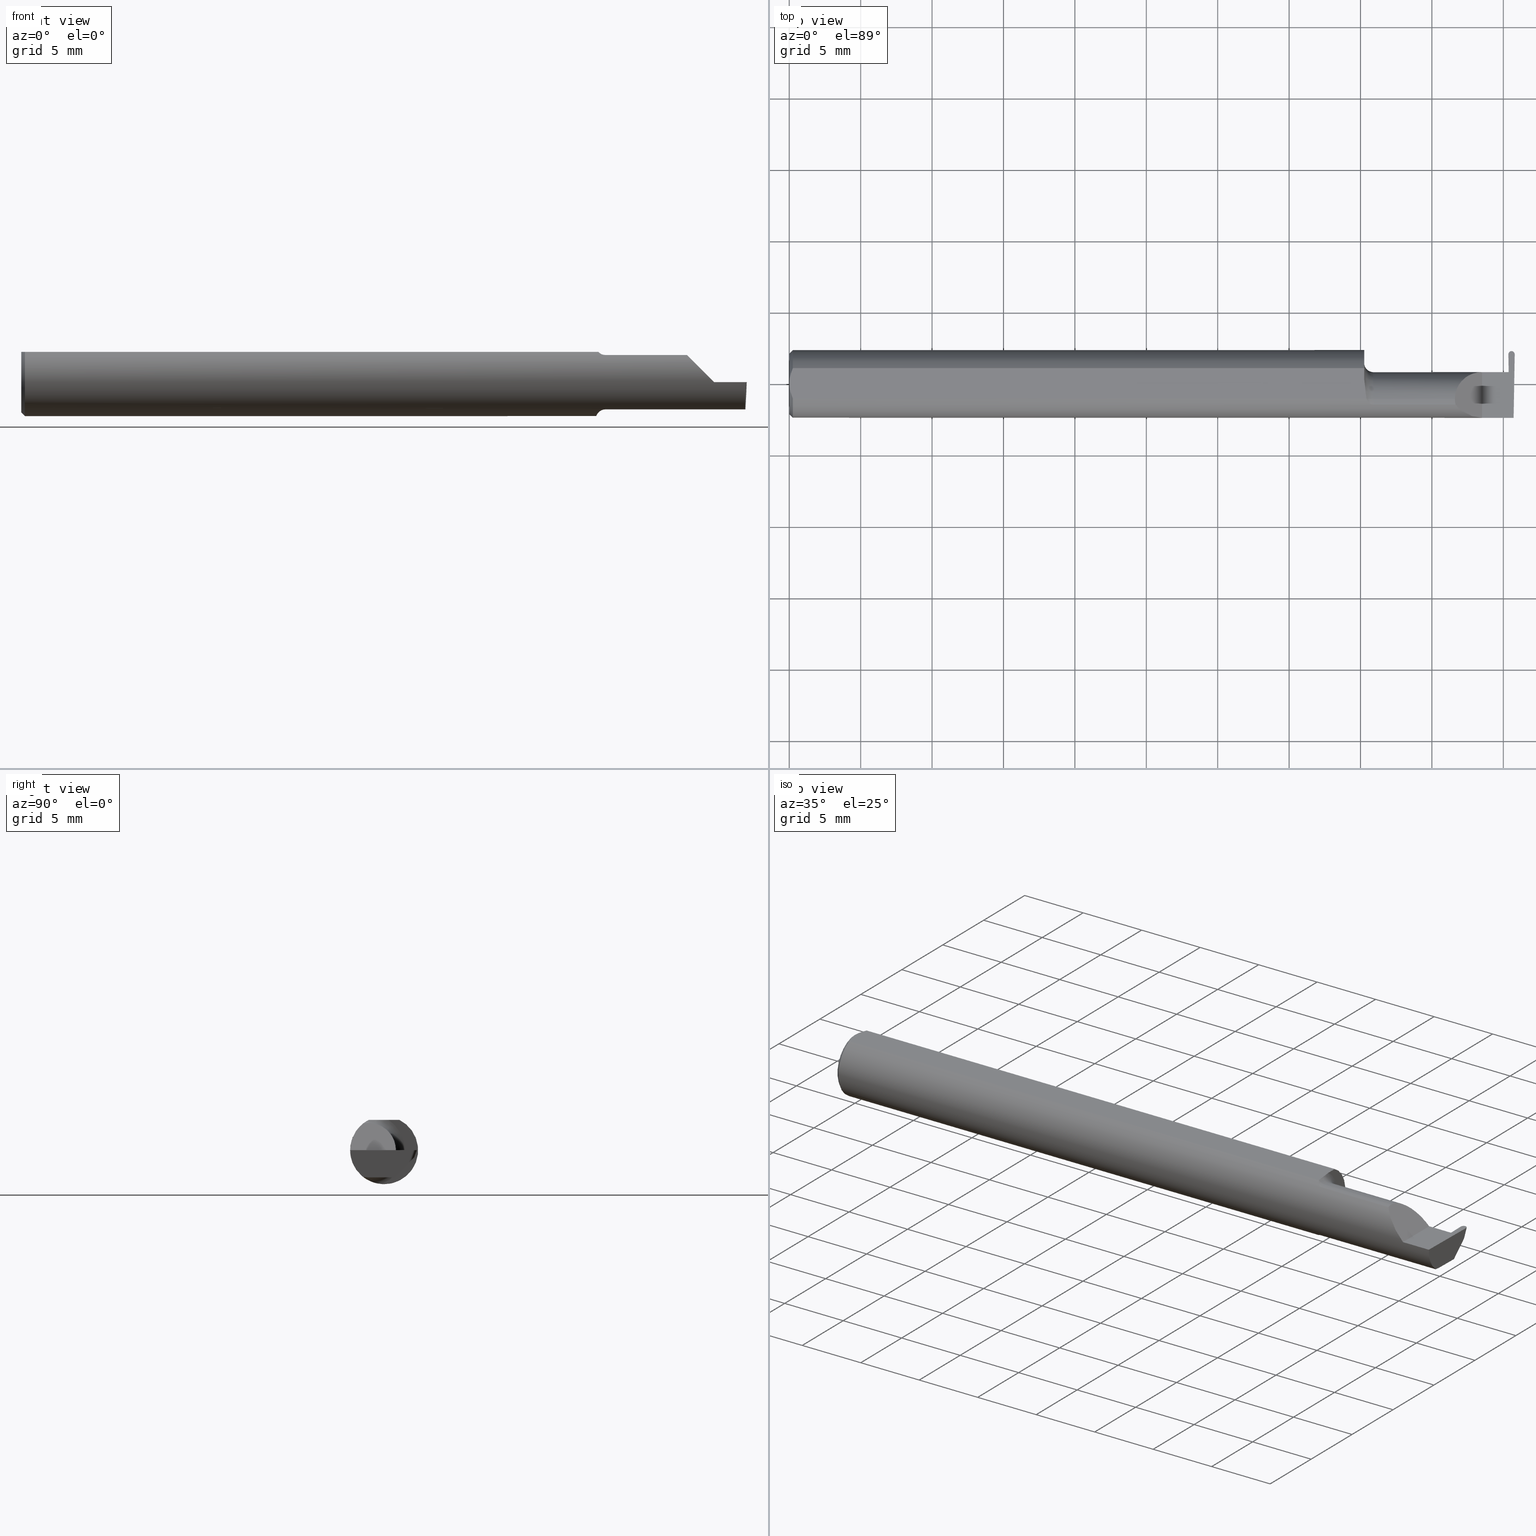
[diagram: canonical four-view strip — front | top / right | iso, engineering-drawing reading convention]
A machine part, canonical four-view strip (front | top / right | iso — engineering-drawing reading convention). The complete STEP part file that produces these views, byte-faithful:
ISO-10303-21;
HEADER;
FILE_DESCRIPTION (( 'STEP AP203' ),
    '1' );
FILE_NAME ('221807-GFR017K-6.STEP',
    '2024-06-17T17:58:18',
    ( '' ),
    ( '' ),
    'SwSTEP 2.0',
    'SolidWorks 2022',
    '' );
FILE_SCHEMA (( 'CONFIG_CONTROL_DESIGN' ));
ENDSEC;

DATA;
#1 = LINE ( 'NONE', #387, #550 ) ;
#2 = ORIENTED_EDGE ( 'NONE', *, *, #162, .F. ) ;
#3 = DIRECTION ( 'NONE',  ( -0.02596452850600440565, 0.7068683906002057871, 0.7068683906002134476 ) ) ;
#4 = VERTEX_POINT ( 'NONE', #225 ) ;
#5 = AXIS2_PLACEMENT_3D ( 'NONE', #686, #503, #125 ) ;
#6 = CARTESIAN_POINT ( 'NONE',  ( 1.910000000000000142, 0.03239999999999999131, 5.082284216461538453E-17 ) ) ;
#7 = LINE ( 'NONE', #699, #117 ) ;
#8 = EDGE_LOOP ( 'NONE', ( #330, #493, #580, #165, #700, #749 ) ) ;
#9 = ADVANCED_FACE ( 'NONE', ( #272 ), #520, .F. ) ;
#10 = FACE_OUTER_BOUND ( 'NONE', #77, .T. ) ;
#11 = EDGE_CURVE ( 'NONE', #444, #765, #517, .T. ) ;
#12 = LINE ( 'NONE', #24, #141 ) ;
#13 = ORIENTED_EDGE ( 'NONE', *, *, #737, .F. ) ;
#14 = DIRECTION ( 'NONE',  ( -1.000000000000000000, -0.000000000000000000, -0.000000000000000000 ) ) ;
#15 = APPROVAL ( #615, 'UNSPECIFIED' ) ;
#16 = CARTESIAN_POINT ( 'NONE',  ( 1.796240804999999829, -0.05810704225352107677, 0.07337936794867833123 ) ) ;
#17 = ORIENTED_EDGE ( 'NONE', *, *, #412, .F. ) ;
#18 = VECTOR ( 'NONE', #527, 39.37007874015748143 ) ;
#19 = CARTESIAN_POINT ( 'NONE',  ( 1.609999999999999654, -0.04260000000000004755, 0.09999999999999999167 ) ) ;
#20 = VECTOR ( 'NONE', #442, 39.37007874015748143 ) ;
#21 = CARTESIAN_POINT ( 'NONE',  ( 1.836620632051321200, -0.05810704225352102820, 0.07337936794867834511 ) ) ;
#22 = ORIENTED_EDGE ( 'NONE', *, *, #369, .F. ) ;
#23 = CARTESIAN_POINT ( 'NONE',  ( 1.977327383411515482, 0.03239999999999999825, 0.000000000000000000 ) ) ;
#24 = CARTESIAN_POINT ( 'NONE',  ( 1.982484788118772157, 0.08109858189432718467, 0.0001417894146689392351 ) ) ;
#25 = EDGE_CURVE ( 'NONE', #123, #194, #84, .T. ) ;
#26 = ORIENTED_EDGE ( 'NONE', *, *, #439, .F. ) ;
#27 = MECHANICAL_CONTEXT ( 'NONE', #623, 'mechanical' ) ;
#28 = PLANE ( 'NONE',  #156 ) ;
#29 = ORIENTED_EDGE ( 'NONE', *, *, #100, .T. ) ;
#30 = TOROIDAL_SURFACE ( 'NONE', #127, 0.09999999999999999167, 0.02499999999999993894 ) ;
#31 = VECTOR ( 'NONE', #655, 39.37007874015748143 ) ;
#32 = LOCAL_TIME ( 10, 58, 18.00000000000000000, #562 ) ;
#33 = DIRECTION ( 'NONE',  ( 0.000000000000000000, 0.000000000000000000, 1.000000000000000000 ) ) ;
#34 = DIRECTION ( 'NONE',  ( 0.03490480639812536257, 0.000000000000000000, -0.9993906415863165194 ) ) ;
#35 = EDGE_CURVE ( 'NONE', #718, #169, #466, .T. ) ;
#36 = PERSON_AND_ORGANIZATION_ROLE ( 'design_owner' ) ;
#37 = ADVANCED_FACE ( 'NONE', ( #91 ), #345, .F. ) ;
#38 = DIRECTION ( 'NONE',  ( 0.03490480639812536257, 0.000000000000000000, 0.9993906415863165194 ) ) ;
#39 = VERTEX_POINT ( 'NONE', #723 ) ;
#40 = PRODUCT_RELATED_PRODUCT_CATEGORY ( 'detail', '', ( #554 ) ) ;
#41 = DIRECTION ( 'NONE',  ( -1.000000000000000000, -0.000000000000000000, -0.000000000000000000 ) ) ;
#42 = CARTESIAN_POINT ( 'NONE',  ( 1.983339777177351770, 0.03239999999999999825, 0.000000000000000000 ) ) ;
#43 = ORIENTED_EDGE ( 'NONE', *, *, #310, .F. ) ;
#44 = CALENDAR_DATE ( 2024, 17, 6 ) ;
#45 = CARTESIAN_POINT ( 'NONE',  ( 1.985920393706870346, 0.02986403519929134442, -0.07262053034965137988 ) ) ;
#46 = CIRCLE ( 'NONE', #5, 0.07500000000000003886 ) ;
#47 = EDGE_CURVE ( 'NONE', #504, #789, #740, .T. ) ;
#48 = CARTESIAN_POINT ( 'NONE',  ( 1.980394745474062690, 0.1353532775798606813, 0.03286871203091912275 ) ) ;
#49 = ORIENTED_EDGE ( 'NONE', *, *, #274, .F. ) ;
#50 = B_SPLINE_CURVE_WITH_KNOTS ( 'NONE', 3,
 ( #173, #559, #242, #719, #163, #417 ),
 .UNSPECIFIED., .F., .F.,
 ( 4, 2, 4 ),
 ( 0.0007041963409106240896, 0.001193146413573845706, 0.001682096486237067649 ),
 .UNSPECIFIED. ) ;
#51 = PERSON_AND_ORGANIZATION ( #579, #447 ) ;
#52 = CARTESIAN_POINT ( 'NONE',  ( 1.609999999999999654, -0.04260000000000003367, 0.000000000000000000 ) ) ;
#53 = CARTESIAN_POINT ( 'NONE',  ( 1.995122200632949871, -0.04781600192481517270, -0.07500000000000003886 ) ) ;
#54 = ORIENTED_EDGE ( 'NONE', *, *, #598, .F. ) ;
#55 = DATE_AND_TIME ( #619, #552 ) ;
#56 = DIRECTION ( 'NONE',  ( 0.000000000000000000, 0.000000000000000000, -1.000000000000000000 ) ) ;
#57 = CARTESIAN_POINT ( 'NONE',  ( 1.834999999999999298, 0.001333982822017845335, 0.07500000000000003886 ) ) ;
#58 = VERTEX_POINT ( 'NONE', #440 ) ;
#59 = PERSON_AND_ORGANIZATION_ROLE ( 'design_supplier' ) ;
#60 = CARTESIAN_POINT ( 'NONE',  ( 1.609999999999999654, -0.05810704225352104207, -0.07337936794867833123 ) ) ;
#61 = AXIS2_PLACEMENT_3D ( 'NONE', #52, #41, #308 ) ;
#62 = ORIENTED_EDGE ( 'NONE', *, *, #78, .F. ) ;
#63 =( BOUNDED_CURVE ( )  B_SPLINE_CURVE ( 3, ( #378, #57, #315, #384 ),
 .UNSPECIFIED., .F., .F. ) 
 B_SPLINE_CURVE_WITH_KNOTS ( ( 4, 4 ),
 ( 0.000000000000000000, 1.570796326794896336 ),
 .UNSPECIFIED. ) 
 CURVE ( )  GEOMETRIC_REPRESENTATION_ITEM ( )  RATIONAL_B_SPLINE_CURVE ( ( 1.000000000000000000, 0.8047378541243650485, 0.8047378541243650485, 1.000000000000000000 ) ) 
 REPRESENTATION_ITEM ( '' )  );
#64 = EDGE_CURVE ( 'NONE', #110, #142, #184, .T. ) ;
#65 = LINE ( 'NONE', #321, #469 ) ;
#66 = ORIENTED_EDGE ( 'NONE', *, *, #190, .F. ) ;
#67 = DIRECTION ( 'NONE',  ( 1.000000000000000000, -0.000000000000000000, -0.000000000000000000 ) ) ;
#68 = VERTEX_POINT ( 'NONE', #228 ) ;
#69 = CARTESIAN_POINT ( 'NONE',  ( 2.191425808082400728, 0.09360000000000005815, 0.08359999999999991049 ) ) ;
#70 = EDGE_CURVE ( 'NONE', #58, #660, #364, .T. ) ;
#71 = DIRECTION ( 'NONE',  ( -0.01745240643727645827, -0.9998476951563912696, 0.000000000000000000 ) ) ;
#72 = EDGE_CURVE ( 'NONE', #4, #444, #403, .T. ) ;
#73 = ORIENTED_EDGE ( 'NONE', *, *, #432, .T. ) ;
#74 = AXIS2_PLACEMENT_3D ( 'NONE', #301, #487, #375 ) ;
#75 = VECTOR ( 'NONE', #471, 39.37007874015748854 ) ;
#76 = DIRECTION ( 'NONE',  ( -0.7071067811865442421, 0.000000000000000000, -0.7071067811865509034 ) ) ;
#77 = EDGE_LOOP ( 'NONE', ( #657, #306, #489, #610 ) ) ;
#78 = EDGE_CURVE ( 'NONE', #574, #545, #761, .T. ) ;
#79 = CARTESIAN_POINT ( 'NONE',  ( 2.115884466375952400, -0.04259999999999980469, -0.07500000000000002498 ) ) ;
#80 = CARTESIAN_POINT ( 'NONE',  ( 1.609999999999999654, -0.05810704225352105595, 0.07337936794867833123 ) ) ;
#81 = VERTEX_POINT ( 'NONE', #360 ) ;
#82 = DIRECTION ( 'NONE',  ( 0.000000000000000000, 0.000000000000000000, 1.000000000000000000 ) ) ;
#83 = DIRECTION ( 'NONE',  ( 0.000000000000000000, 0.000000000000000000, -1.000000000000000000 ) ) ;
#84 = LINE ( 'NONE', #341, #366 ) ;
#85 = AXIS2_PLACEMENT_3D ( 'NONE', #309, #178, #732 ) ;
#86 = CYLINDRICAL_SURFACE ( 'NONE', #381, 0.008750000000000000833 ) ;
#87 = LOCAL_TIME ( 10, 58, 18.00000000000000000, #668 ) ;
#88 = ADVANCED_FACE ( 'NONE', ( #478 ), #168, .T. ) ;
#89 = LINE ( 'NONE', #392, #390 ) ;
#90 =( BOUNDED_CURVE ( )  B_SPLINE_CURVE ( 3, ( #273, #521, #563, #145 ),
 .UNSPECIFIED., .F., .F. ) 
 B_SPLINE_CURVE_WITH_KNOTS ( ( 4, 4 ),
 ( 0.2063001339125309086, 1.107331509589561058 ),
 .UNSPECIFIED. ) 
 CURVE ( )  GEOMETRIC_REPRESENTATION_ITEM ( )  RATIONAL_B_SPLINE_CURVE ( ( 1.000000000000000000, 0.9334817841311873199, 0.9334817841311873199, 1.000000000000000000 ) ) 
 REPRESENTATION_ITEM ( '' )  );
#91 = FACE_OUTER_BOUND ( 'NONE', #497, .T. ) ;
#92 = DIRECTION ( 'NONE',  ( 1.000000000000000000, 0.000000000000000000, 0.000000000000000000 ) ) ;
#93 = B_SPLINE_CURVE_WITH_KNOTS ( 'NONE', 3,
 ( #640, #271, #146, #397, #710, #643 ),
 .UNSPECIFIED., .F., .F.,
 ( 4, 2, 4 ),
 ( 0.001744210492668864416, 0.002295110172257193264, 0.002846009851845522111 ),
 .UNSPECIFIED. ) ;
#94 = DIRECTION ( 'NONE',  ( -1.000000000000000000, -0.000000000000000000, -0.000000000000000000 ) ) ;
#95 =( BOUNDED_CURVE ( )  B_SPLINE_CURVE ( 3, ( #462, #708, #646, #21 ),
 .UNSPECIFIED., .F., .F. ) 
 B_SPLINE_CURVE_WITH_KNOTS ( ( 4, 4 ),
 ( 4.712388980384689674, 5.613420356061720184 ),
 .UNSPECIFIED. ) 
 CURVE ( )  GEOMETRIC_REPRESENTATION_ITEM ( )  RATIONAL_B_SPLINE_CURVE ( ( 1.000000000000000000, 0.9334817841311873199, 0.9334817841311873199, 1.000000000000000000 ) ) 
 REPRESENTATION_ITEM ( '' )  );
#96 = VERTEX_POINT ( 'NONE', #609 ) ;
#97 = CARTESIAN_POINT ( 'NONE',  ( 1.985000026482436342, 0.02931965133412152771, -0.04667009593691543584 ) ) ;
#98 = ADVANCED_FACE ( 'NONE', ( #174 ), #671, .T. ) ;
#99 = ORIENTED_EDGE ( 'NONE', *, *, #100, .F. ) ;
#100 = EDGE_CURVE ( 'NONE', #198, #697, #296, .T. ) ;
#101 = AXIS2_PLACEMENT_3D ( 'NONE', #560, #420, #802 ) ;
#102 = AXIS2_PLACEMENT_3D ( 'NONE', #539, #167, #33 ) ;
#103 = DIRECTION ( 'NONE',  ( 1.000000000000000000, 0.000000000000000000, 0.000000000000000000 ) ) ;
#104 = CARTESIAN_POINT ( 'NONE',  ( 1.595264545693809044, -0.04993027844100252771, -0.07924826417278522939 ) ) ;
#105 = ORIENTED_EDGE ( 'NONE', *, *, #220, .T. ) ;
#106 = DIRECTION ( 'NONE',  ( -0.03876062227022340767, -0.3417631236437465025, -0.9389864650134710500 ) ) ;
#107 = ADVANCED_FACE ( 'NONE', ( #356 ), #340, .F. ) ;
#108 = CARTESIAN_POINT ( 'NONE',  ( 1.986043175114837744, -0.001060451341131608870, -0.07500000000000005274 ) ) ;
#109 = DIRECTION ( 'NONE',  ( 0.000000000000000000, -0.03489949670250104552, -0.9993908270190957621 ) ) ;
#110 = VERTEX_POINT ( 'NONE', #540 ) ;
#111 = APPROVAL_ROLE ( '' ) ;
#112 = EDGE_CURVE ( 'NONE', #68, #194, #407, .T. ) ;
#113 = CARTESIAN_POINT ( 'NONE',  ( 1.986094660071884288, -0.04260000000000003367, -0.07500000000000002498 ) ) ;
#114 = CARTESIAN_POINT ( 'NONE',  ( 1.607653034764491284, -0.05810704225352101432, -0.07337936794867834511 ) ) ;
#115 = ORIENTED_EDGE ( 'NONE', *, *, #703, .F. ) ;
#116 = PLANE ( 'NONE',  #589 ) ;
#117 = VECTOR ( 'NONE', #193, 39.37007874015748143 ) ;
#118 = CARTESIAN_POINT ( 'NONE',  ( 1.995213246285213016, -0.04259999999999980469, -0.07500000000000002498 ) ) ;
#119 = ORIENTED_EDGE ( 'NONE', *, *, #433, .T. ) ;
#120 = PERSON_AND_ORGANIZATION_ROLE ( 'creator' ) ;
#121 = DIRECTION ( 'NONE',  ( -1.000000000000000000, -0.000000000000000000, -0.000000000000000000 ) ) ;
#122 = CARTESIAN_POINT ( 'NONE',  ( 1.593086474849918499, -0.04638796853538170589, -0.08140770120152260314 ) ) ;
#123 = VERTEX_POINT ( 'NONE', #481 ) ;
#124 = CARTESIAN_POINT ( 'NONE',  ( 1.996436576927335116, 0.02748456554894272708, -0.07500000000000002498 ) ) ;
#125 = DIRECTION ( 'NONE',  ( 0.000000000000000000, 0.000000000000000000, 1.000000000000000000 ) ) ;
#126 = ORIENTED_EDGE ( 'NONE', *, *, #70, .T. ) ;
#127 = AXIS2_PLACEMENT_3D ( 'NONE', #763, #472, #153 ) ;
#128 = LINE ( 'NONE', #808, #498 ) ;
#129 = VECTOR ( 'NONE', #103, 39.37007874015748143 ) ;
#130 = ORIENTED_EDGE ( 'NONE', *, *, #248, .T. ) ;
#131 = CC_DESIGN_PERSON_AND_ORGANIZATION_ASSIGNMENT ( #183, #373, ( #143 ) ) ;
#132 = CARTESIAN_POINT ( 'NONE',  ( -3.937007874019685528E-05, 0.09039999999999999425, 0.000000000000000000 ) ) ;
#133 = ORIENTED_EDGE ( 'NONE', *, *, #679, .T. ) ;
#134 = ADVANCED_FACE ( 'NONE', ( #728 ), #426, .F. ) ;
#135 = EDGE_CURVE ( 'NONE', #569, #81, #456, .T. ) ;
#136 = LINE ( 'NONE', #253, #715 ) ;
#137 = ORIENTED_EDGE ( 'NONE', *, *, #631, .F. ) ;
#138 = CARTESIAN_POINT ( 'NONE',  ( 1.584999999999999964, -0.04260000000000002673, -0.07500000000000003886 ) ) ;
#139 = CARTESIAN_POINT ( 'NONE',  ( 1.983339777177351770, 0.03239999999999999825, 0.000000000000000000 ) ) ;
#140 = EDGE_CURVE ( 'NONE', #110, #39, #191, .T. ) ;
#141 = VECTOR ( 'NONE', #347, 39.37007874015748854 ) ;
#142 = VERTEX_POINT ( 'NONE', #746 ) ;
#143 = SECURITY_CLASSIFICATION ( '', '', #683 ) ;
#144 = CONICAL_SURFACE ( 'NONE', #222, 0.08359999999999989662, 0.7853981633974458365 ) ;
#145 = CARTESIAN_POINT ( 'NONE',  ( 1.996942494641693600, -0.09360000000000001652, 0.000000000000000000 ) ) ;
#146 = CARTESIAN_POINT ( 'NONE',  ( 0.0009807498324118613890, 0.01453516766257752398, 0.08359999999999992437 ) ) ;
#147 = ORIENTED_EDGE ( 'NONE', *, *, #737, .T. ) ;
#148 = ORIENTED_EDGE ( 'NONE', *, *, #284, .F. ) ;
#149 = DIRECTION ( 'NONE',  ( 1.000000000000000000, 0.000000000000000000, 0.000000000000000000 ) ) ;
#150 = DIRECTION ( 'NONE',  ( -0.7071067811865507924, 0.000000000000000000, 0.7071067811865441310 ) ) ;
#151 = CARTESIAN_POINT ( 'NONE',  ( 1.998599639583657162, 0.06877923926384967024, -0.03370532628509262385 ) ) ;
#152 = LINE ( 'NONE', #229, #329 ) ;
#153 = DIRECTION ( 'NONE',  ( 0.000000000000000000, 0.000000000000000000, 1.000000000000000000 ) ) ;
#154 = CARTESIAN_POINT ( 'NONE',  ( 1.584999999999999964, 0.03221730376948682417, -0.005231735530809322222 ) ) ;
#155 = EDGE_LOOP ( 'NONE', ( #182, #192, #147, #551 ) ) ;
#156 = AXIS2_PLACEMENT_3D ( 'NONE', #533, #76, #150 ) ;
#157 = CARTESIAN_POINT ( 'NONE',  ( 1.977266484668011248, 0.03233910125649559764, -0.001743911843603133211 ) ) ;
#158 = CIRCLE ( 'NONE', #484, 0.09360000000000001652 ) ;
#159 = CARTESIAN_POINT ( 'NONE',  ( 1.607655343791669855, -0.05810704225352101432, 0.07337936794867834511 ) ) ;
#160 = ORIENTED_EDGE ( 'NONE', *, *, #512, .T. ) ;
#161 = DIRECTION ( 'NONE',  ( 0.000000000000000000, 0.000000000000000000, 1.000000000000000000 ) ) ;
#162 = EDGE_CURVE ( 'NONE', #511, #504, #136, .T. ) ;
#163 = CARTESIAN_POINT ( 'NONE',  ( 1.584999999999999964, -0.01308640439514271829, -0.09289765197734378699 ) ) ;
#164 = ADVANCED_FACE ( 'NONE', ( #448 ), #507, .F. ) ;
#165 = ORIENTED_EDGE ( 'NONE', *, *, #439, .T. ) ;
#166 = DIRECTION ( 'NONE',  ( 0.000000000000000000, 0.000000000000000000, -1.000000000000000000 ) ) ;
#167 = DIRECTION ( 'NONE',  ( -1.000000000000000000, -0.000000000000000000, -0.000000000000000000 ) ) ;
#168 = CYLINDRICAL_SURFACE ( 'NONE', #85, 0.07500000000000003886 ) ;
#169 = VERTEX_POINT ( 'NONE', #629 ) ;
#170 = CARTESIAN_POINT ( 'NONE',  ( 1.977205585924506570, 0.03227820251299121090, -0.003487823687206267290 ) ) ;
#171 = AXIS2_PLACEMENT_3D ( 'NONE', #382, #693, #196 ) ;
#172 = AXIS2_PLACEMENT_3D ( 'NONE', #587, #338, #270 ) ;
#173 = CARTESIAN_POINT ( 'NONE',  ( 1.591356684838558744, -0.04260000000000005449, -0.08334386600104409792 ) ) ;
#174 = FACE_OUTER_BOUND ( 'NONE', #483, .T. ) ;
#175 = ORIENTED_EDGE ( 'NONE', *, *, #738, .T. ) ;
#176 = APPROVAL_DATE_TIME ( #437, #15 ) ;
#177 = LINE ( 'NONE', #293, #482 ) ;
#178 = DIRECTION ( 'NONE',  ( -1.000000000000000000, -0.000000000000000000, -0.000000000000000000 ) ) ;
#179 = VERTEX_POINT ( 'NONE', #750 ) ;
#180 = SHAPE_DEFINITION_REPRESENTATION ( #502, #243 ) ;
#181 = CARTESIAN_POINT ( 'NONE',  ( 1.585000000000000187, 0.003280657920457311257, 0.08359999999999991049 ) ) ;
#182 = ORIENTED_EDGE ( 'NONE', *, *, #394, .F. ) ;
#183 = PERSON_AND_ORGANIZATION ( #579, #447 ) ;
#184 =( BOUNDED_CURVE ( )  B_SPLINE_CURVE ( 3, ( #240, #235, #680, #613 ),
 .UNSPECIFIED., .F., .F. ) 
 B_SPLINE_CURVE_WITH_KNOTS ( ( 4, 4 ),
 ( 6.177091236413993158, 7.752341154236727760 ),
 .UNSPECIFIED. ) 
 CURVE ( )  GEOMETRIC_REPRESENTATION_ITEM ( )  RATIONAL_B_SPLINE_CURVE ( ( 1.000000000000000000, 0.8036869647627045143, 0.8036869647627045143, 1.000000000000000000 ) ) 
 REPRESENTATION_ITEM ( '' )  );
#185 = CARTESIAN_POINT ( 'NONE',  ( 2.387527623501553705E-17, -0.01462709520273675068, 0.08359999999999991049 ) ) ;
#186 = VECTOR ( 'NONE', #67, 39.37007874015748143 ) ;
#187 = CARTESIAN_POINT ( 'NONE',  ( 1.982482944067824659, 0.08148793596879662371, 0.000000000000000000 ) ) ;
#188 = ORIENTED_EDGE ( 'NONE', *, *, #538, .T. ) ;
#189 = DIRECTION ( 'NONE',  ( 0.000000000000000000, -0.3420201433256689350, -0.9396926207859082059 ) ) ;
#190 = EDGE_CURVE ( 'NONE', #651, #774, #443, .T. ) ;
#191 = LINE ( 'NONE', #132, #186 ) ;
#192 = ORIENTED_EDGE ( 'NONE', *, *, #35, .T. ) ;
#193 = DIRECTION ( 'NONE',  ( -1.000000000000000000, -0.000000000000000000, -0.000000000000000000 ) ) ;
#194 = VERTEX_POINT ( 'NONE', #328 ) ;
#195 = CONICAL_SURFACE ( 'NONE', #741, 0.08359999999999989662, 0.7853981633974458365 ) ;
#196 = DIRECTION ( 'NONE',  ( 0.000000000000000000, 0.000000000000000000, -1.000000000000000000 ) ) ;
#197 = CC_DESIGN_SECURITY_CLASSIFICATION ( #143, ( #602 ) ) ;
#198 = VERTEX_POINT ( 'NONE', #60 ) ;
#199 = EDGE_CURVE ( 'NONE', #422, #254, #46, .T. ) ;
#200 = DIRECTION ( 'NONE',  ( 0.000000000000000000, -0.9396926207859084279, 0.3420201433256688794 ) ) ;
#201 = ORIENTED_EDGE ( 'NONE', *, *, #223, .F. ) ;
#202 = CARTESIAN_POINT ( 'NONE',  ( 1.836620632051321200, -0.05810704225352102820, 0.07337936794867834511 ) ) ;
#203 = DIRECTION ( 'NONE',  ( -0.01745240643727645827, -0.9998476951563912696, 0.000000000000000000 ) ) ;
#204 = ORIENTED_EDGE ( 'NONE', *, *, #798, .T. ) ;
#205 = FACE_OUTER_BOUND ( 'NONE', #637, .T. ) ;
#206 = CARTESIAN_POINT ( 'NONE',  ( 1.609999999999999654, -0.05810704225352105595, 0.07337936794867833123 ) ) ;
#207 =( BOUNDED_CURVE ( )  B_SPLINE_CURVE ( 3, ( #357, #214, #653, #658 ),
 .UNSPECIFIED., .F., .T. ) 
 B_SPLINE_CURVE_WITH_KNOTS ( ( 4, 4 ),
 ( 4.726007796544807071, 6.224820797642042436 ),
 .UNSPECIFIED. ) 
 CURVE ( )  GEOMETRIC_REPRESENTATION_ITEM ( )  RATIONAL_B_SPLINE_CURVE ( ( 1.000000000000000000, 0.8213955281430405098, 0.8213955281430405098, 1.000000000000000000 ) ) 
 REPRESENTATION_ITEM ( '' )  );
#208 = VECTOR ( 'NONE', #515, 39.37007874015748143 ) ;
#209 = EDGE_LOOP ( 'NONE', ( #361, #758, #62, #160, #54 ) ) ;
#210 = AXIS2_PLACEMENT_3D ( 'NONE', #79, #678, #211 ) ;
#211 = DIRECTION ( 'NONE',  ( 1.000000000000000000, 0.000000000000000000, -0.000000000000000000 ) ) ;
#212 = DIRECTION ( 'NONE',  ( 0.000000000000000000, 0.000000000000000000, -1.000000000000000000 ) ) ;
#213 = EDGE_CURVE ( 'NONE', #511, #712, #65, .T. ) ;
#214 = CARTESIAN_POINT ( 'NONE',  ( 1.983457986492379144, 0.07687344668278631166, -0.02561111886615591304 ) ) ;
#215 = CARTESIAN_POINT ( 'NONE',  ( 1.584999999999999964, -0.04260000000000003367, 0.000000000000000000 ) ) ;
#216 = CARTESIAN_POINT ( 'NONE',  ( 1.999023623507620639, 0.07687344668278647819, -0.02561111886615573263 ) ) ;
#217 = CARTESIAN_POINT ( 'NONE',  ( 0.000000000000000000, 0.000000000000000000, 0.000000000000000000 ) ) ;
#218 = ORIENTED_EDGE ( 'NONE', *, *, #391, .F. ) ;
#219 = AXIS2_PLACEMENT_3D ( 'NONE', #544, #788, #231 ) ;
#220 = EDGE_CURVE ( 'NONE', #179, #651, #63, .T. ) ;
#221 = APPLICATION_PROTOCOL_DEFINITION ( 'international standard', 'config_control_design', 1994, #245 ) ;
#222 = AXIS2_PLACEMENT_3D ( 'NONE', #501, #389, #702 ) ;
#223 = EDGE_CURVE ( 'NONE', #451, #516, #415, .T. ) ;
#224 = CARTESIAN_POINT ( 'NONE',  ( 0.000000000000000000, 0.000000000000000000, 0.000000000000000000 ) ) ;
#225 = CARTESIAN_POINT ( 'NONE',  ( 1.991240804999999670, 0.08936171360468941893, -0.002852668426042753638 ) ) ;
#226 = DIRECTION ( 'NONE',  ( -0.03876062227022355339, 0.3417631236437465025, 0.9389864650134709390 ) ) ;
#227 = DIRECTION ( 'NONE',  ( -0.03876062227022340073, -0.3417631236437465025, -0.9389864650134709390 ) ) ;
#228 = CARTESIAN_POINT ( 'NONE',  ( 0.01000000000000016674, 0.000000000000000000, -0.09360000000000001652 ) ) ;
#229 = CARTESIAN_POINT ( 'NONE',  ( 0.000000000000000000, 0.000000000000000000, -0.08359999999999989662 ) ) ;
#230 = FACE_OUTER_BOUND ( 'NONE', #246, .T. ) ;
#231 = DIRECTION ( 'NONE',  ( 0.000000000000000000, 0.000000000000000000, -1.000000000000000000 ) ) ;
#232 = EDGE_LOOP ( 'NONE', ( #586, #175, #565, #446 ) ) ;
#233 = CALENDAR_DATE ( 2024, 17, 6 ) ;
#234 = DIRECTION ( 'NONE',  ( -1.000000000000000000, -0.000000000000000000, -0.000000000000000000 ) ) ;
#235 = CARTESIAN_POINT ( 'NONE',  ( 1.985975431331754804, 0.09040000000000000813, -7.891494905330330497E-18 ) ) ;
#236 = PRODUCT_DEFINITION ( 'UNKNOWN', '', #602, #670 ) ;
#237 = ORIENTED_EDGE ( 'NONE', *, *, #25, .F. ) ;
#238 = DATE_TIME_ROLE ( 'classification_date' ) ;
#239 = LINE ( 'NONE', #491, #423 ) ;
#240 = CARTESIAN_POINT ( 'NONE',  ( 1.991123049092493602, 0.09039999999999999425, 0.000000000000000000 ) ) ;
#241 = ORIENTED_EDGE ( 'NONE', *, *, #433, .F. ) ;
#242 = CARTESIAN_POINT ( 'NONE',  ( 1.587415450430338160, -0.03151229630690478845, -0.08835846806355293626 ) ) ;
#243 = ADVANCED_BREP_SHAPE_REPRESENTATION ( '221807-GFR017K-6', ( #685, #716 ), #753 ) ;
#244 = CARTESIAN_POINT ( 'NONE',  ( 1.605389671955115727, -0.05750350940205781886, -0.07386306649500083699 ) ) ;
#245 = APPLICATION_CONTEXT ( 'configuration controlled 3d designs of mechanical parts and assemblies' ) ;
#246 = EDGE_LOOP ( 'NONE', ( #524, #614, #2, #148 ) ) ;
#247 = APPROVAL_ROLE ( '' ) ;
#248 = EDGE_CURVE ( 'NONE', #697, #799, #648, .T. ) ;
#249 = AXIS2_PLACEMENT_3D ( 'NONE', #754, #570, #200 ) ;
#250 = EDGE_CURVE ( 'NONE', #712, #545, #128, .T. ) ;
#251 = CYLINDRICAL_SURFACE ( 'NONE', #172, 0.09360000000000001652 ) ;
#252 = APPROVAL_PERSON_ORGANIZATION ( #51, #269, #431 ) ;
#253 = CARTESIAN_POINT ( 'NONE',  ( 1.982613296257933255, 0.1198977383242114114, 0.01741317277526965857 ) ) ;
#254 = VERTEX_POINT ( 'NONE', #578 ) ;
#255 = CC_DESIGN_PERSON_AND_ORGANIZATION_ASSIGNMENT ( #625, #59, ( #602 ) ) ;
#256 = LINE ( 'NONE', #505, #674 ) ;
#257 = ORIENTED_EDGE ( 'NONE', *, *, #199, .F. ) ;
#258 = ADVANCED_FACE ( 'NONE', ( #564 ), #573, .T. ) ;
#259 = DIRECTION ( 'NONE',  ( -0.001239419280281404273, 0.9999992319196288060, 0.000000000000000000 ) ) ;
#260 = ORIENTED_EDGE ( 'NONE', *, *, #35, .F. ) ;
#261 = AXIS2_PLACEMENT_3D ( 'NONE', #298, #601, #429 ) ;
#262 = CARTESIAN_POINT ( 'NONE',  ( 1.591280153739604852, -0.04243240890922558850, 0.08342952773968848046 ) ) ;
#263 = CC_DESIGN_APPROVAL ( #778, ( #602 ) ) ;
#264 = ORIENTED_EDGE ( 'NONE', *, *, #358, .F. ) ;
#265 = CARTESIAN_POINT ( 'NONE',  ( 0.01000000000000016674, -0.04209513035969864037, 0.08359999999999988274 ) ) ;
#266 = DIRECTION ( 'NONE',  ( 1.000000000000000000, -0.000000000000000000, -0.000000000000000000 ) ) ;
#267 =( BOUNDED_CURVE ( )  B_SPLINE_CURVE ( 3, ( #113, #108, #97, #612 ),
 .UNSPECIFIED., .F., .F. ) 
 B_SPLINE_CURVE_WITH_KNOTS ( ( 4, 4 ),
 ( 3.176499238629679756, 4.677482395344800814 ),
 .UNSPECIFIED. ) 
 CURVE ( )  GEOMETRIC_REPRESENTATION_ITEM ( )  RATIONAL_B_SPLINE_CURVE ( ( 1.000000000000000000, 0.8209024677461141950, 0.8209024677461141950, 1.000000000000000000 ) ) 
 REPRESENTATION_ITEM ( '' )  );
#268 = ORIENTED_EDGE ( 'NONE', *, *, #343, .F. ) ;
#269 = APPROVAL ( #490, 'UNSPECIFIED' ) ;
#270 = DIRECTION ( 'NONE',  ( 0.000000000000000000, 0.000000000000000000, 1.000000000000000000 ) ) ;
#271 = CARTESIAN_POINT ( 'NONE',  ( 2.476070721796526867E-17, 0.007317304829308955878, 0.08359999999999991049 ) ) ;
#272 = FACE_OUTER_BOUND ( 'NONE', #803, .T. ) ;
#273 = CARTESIAN_POINT ( 'NONE',  ( 1.994999172194938941, -0.05810704225352107677, -0.07337936794867833123 ) ) ;
#274 = EDGE_CURVE ( 'NONE', #179, #254, #256, .T. ) ;
#275 = DIRECTION ( 'NONE',  ( 1.000000000000000000, 0.000000000000000000, 0.000000000000000000 ) ) ;
#276 = VECTOR ( 'NONE', #275, 39.37007874015748143 ) ;
#277 = ORIENTED_EDGE ( 'NONE', *, *, #11, .F. ) ;
#278 = AXIS2_PLACEMENT_3D ( 'NONE', #69, #326, #575 ) ;
#279 = CARTESIAN_POINT ( 'NONE',  ( 1.998599639583657162, 0.06877923926384967024, -0.03370532628509262385 ) ) ;
#280 = LINE ( 'NONE', #769, #18 ) ;
#281 = EDGE_LOOP ( 'NONE', ( #441, #402, #694 ) ) ;
#282 =( LENGTH_UNIT ( ) NAMED_UNIT ( * ) SI_UNIT ( $, .METRE. ) );
#283 = FACE_OUTER_BOUND ( 'NONE', #337, .T. ) ;
#284 = EDGE_CURVE ( 'NONE', #383, #511, #1, .T. ) ;
#285 = ORIENTED_EDGE ( 'NONE', *, *, #654, .F. ) ;
#286 = EDGE_CURVE ( 'NONE', #430, #58, #450, .T. ) ;
#287 = LINE ( 'NONE', #416, #535 ) ;
#288 = CARTESIAN_POINT ( 'NONE',  ( 0.000000000000000000, 0.000000000000000000, -0.08359999999999989662 ) ) ;
#289 = EDGE_LOOP ( 'NONE', ( #320, #627 ) ) ;
#290 = CARTESIAN_POINT ( 'NONE',  ( 0.000000000000000000, 0.000000000000000000, 0.000000000000000000 ) ) ;
#291 = EDGE_CURVE ( 'NONE', #545, #383, #7, .T. ) ;
#292 = VECTOR ( 'NONE', #14, 39.37007874015748143 ) ;
#293 = CARTESIAN_POINT ( 'NONE',  ( 1.988366712856626695, 0.06402004850676712433, -0.07247832105396549707 ) ) ;
#294 = CARTESIAN_POINT ( 'NONE',  ( 1.991240804999999225, 0.08541976413866105011, -0.01365817340858963697 ) ) ;
#295 = CC_DESIGN_DATE_AND_TIME_ASSIGNMENT ( #796, #238, ( #143 ) ) ;
#296 = B_SPLINE_CURVE_WITH_KNOTS ( 'NONE', 3,
 ( #663, #114, #244, #496, #549, #104, #122, #794 ),
 .UNSPECIFIED., .F., .F.,
 ( 4, 2, 2, 4 ),
 ( 1.968126669309073504E-07, 0.0001761966947278509495, 0.0003521965767887710289, 0.0007041963409106240896 ),
 .UNSPECIFIED. ) ;
#297 = CARTESIAN_POINT ( 'NONE',  ( 1.591129652885479473, -0.04209513035970123551, 0.08359999999999991049 ) ) ;
#298 = CARTESIAN_POINT ( 'NONE',  ( 1.609999999999999654, -0.04260000000000004755, 0.000000000000000000 ) ) ;
#299 = ORIENTED_EDGE ( 'NONE', *, *, #250, .F. ) ;
#300 = LINE ( 'NONE', #543, #457 ) ;
#301 = CARTESIAN_POINT ( 'NONE',  ( 1.584999999999999964, -0.04260000000000003367, 0.000000000000000000 ) ) ;
#302 = ORIENTED_EDGE ( 'NONE', *, *, #636, .T. ) ;
#303 = PERSON_AND_ORGANIZATION_ROLE ( 'creator' ) ;
#304 = CARTESIAN_POINT ( 'NONE',  ( 0.000000000000000000, 0.000000000000000000, 0.08359999999999991049 ) ) ;
#305 = CARTESIAN_POINT ( 'NONE',  ( 2.999519565323742037E-32, -0.09359999999999998876, 2.449293598294716768E-16 ) ) ;
#306 = ORIENTED_EDGE ( 'NONE', *, *, #284, .T. ) ;
#307 = APPROVAL_DATE_TIME ( #55, #269 ) ;
#308 = DIRECTION ( 'NONE',  ( 0.000000000000000000, 0.000000000000000000, 1.000000000000000000 ) ) ;
#309 = CARTESIAN_POINT ( 'NONE',  ( 1.584999999999999964, -0.04260000000000003367, 0.000000000000000000 ) ) ;
#310 = EDGE_CURVE ( 'NONE', #516, #422, #350, .T. ) ;
#311 = ORIENTED_EDGE ( 'NONE', *, *, #581, .F. ) ;
#312 = PERSON_AND_ORGANIZATION ( #579, #447 ) ;
#313 = ADVANCED_FACE ( 'NONE', ( #650 ), #195, .T. ) ;
#314 = FACE_OUTER_BOUND ( 'NONE', #281, .T. ) ;
#315 = CARTESIAN_POINT ( 'NONE',  ( 1.866066017177981706, 0.03239999999999999131, 0.04393398282201791544 ) ) ;
#316 = EDGE_LOOP ( 'NONE', ( #807, #277, #641, #372, #22 ) ) ;
#317 = AXIS2_PLACEMENT_3D ( 'NONE', #764, #770, #773 ) ;
#318 = AXIS2_PLACEMENT_3D ( 'NONE', #335, #121, #461 ) ;
#319 = CARTESIAN_POINT ( 'NONE',  ( 1.591129652885479473, -0.04209513035970123551, 0.08359999999999991049 ) ) ;
#320 = ORIENTED_EDGE ( 'NONE', *, *, #358, .T. ) ;
#321 = CARTESIAN_POINT ( 'NONE',  ( -3.937007874019685528E-05, 0.02748456554894273055, -0.07500000000000002498 ) ) ;
#322 = ORIENTED_EDGE ( 'NONE', *, *, #548, .T. ) ;
#323 = CARTESIAN_POINT ( 'NONE',  ( 1.584999999999999964, 0.03239999999999999131, 5.082284216461538453E-17 ) ) ;
#324 = ADVANCED_FACE ( 'NONE', ( #595 ), #28, .F. ) ;
#325 = ORIENTED_EDGE ( 'NONE', *, *, #223, .T. ) ;
#326 = DIRECTION ( 'NONE',  ( 0.000000000000000000, 0.000000000000000000, 1.000000000000000000 ) ) ;
#327 = VECTOR ( 'NONE', #71, 39.37007874015748143 ) ;
#328 = CARTESIAN_POINT ( 'NONE',  ( 0.01000000000000016674, 0.04209513035969864037, 0.08359999999999988274 ) ) ;
#329 = VECTOR ( 'NONE', #346, 39.37007874015748143 ) ;
#330 = ORIENTED_EDGE ( 'NONE', *, *, #47, .T. ) ;
#331 = CARTESIAN_POINT ( 'NONE',  ( 1.591356684838558744, -0.04260000000000005449, -0.08334386600104409792 ) ) ;
#332 = CARTESIAN_POINT ( 'NONE',  ( 1.983339777177351770, 0.03239999999999999825, 0.000000000000000000 ) ) ;
#333 = ORIENTED_EDGE ( 'NONE', *, *, #548, .F. ) ;
#334 = EDGE_CURVE ( 'NONE', #395, #142, #89, .T. ) ;
#335 = CARTESIAN_POINT ( 'NONE',  ( 1.609999999999999654, -0.04260000000000004755, 0.000000000000000000 ) ) ;
#336 = DIRECTION ( 'NONE',  ( 0.000000000000000000, 0.000000000000000000, 1.000000000000000000 ) ) ;
#337 = EDGE_LOOP ( 'NONE', ( #530, #795, #257, #73 ) ) ;
#338 = DIRECTION ( 'NONE',  ( -1.000000000000000000, -0.000000000000000000, -0.000000000000000000 ) ) ;
#339 = DIRECTION ( 'NONE',  ( -0.03549161113179510885, 0.03487750912278164694, 0.9987611851171729338 ) ) ;
#340 = TOROIDAL_SURFACE ( 'NONE', #261, 0.09999999999999999167, 0.02499999999999993894 ) ;
#341 = CARTESIAN_POINT ( 'NONE',  ( 0.000000000000000000, 0.04209513035969864037, 0.08359999999999988274 ) ) ;
#342 = LOCAL_TIME ( 10, 58, 18.00000000000000000, #428 ) ;
#343 = EDGE_CURVE ( 'NONE', #774, #395, #413, .T. ) ;
#344 = CARTESIAN_POINT ( 'NONE',  ( 1.986094660071884288, -0.04260000000000003367, -0.07500000000000002498 ) ) ;
#345 = PLANE ( 'NONE',  #701 ) ;
#346 = DIRECTION ( 'NONE',  ( 0.7071067811865493491, 0.000000000000000000, -0.7071067811865457964 ) ) ;
#347 = DIRECTION ( 'NONE',  ( 0.03876062227022355339, -0.3417631236437464470, -0.9389864650134710500 ) ) ;
#348 = ORIENTED_EDGE ( 'NONE', *, *, #691, .F. ) ;
#349 =( BOUNDED_CURVE ( )  B_SPLINE_CURVE ( 3, ( #202, #518, #759, #642 ),
 .UNSPECIFIED., .F., .T. ) 
 B_SPLINE_CURVE_WITH_KNOTS ( ( 4, 4 ),
 ( 6.074922494366330916, 6.283185307179586232 ),
 .UNSPECIFIED. ) 
 CURVE ( )  GEOMETRIC_REPRESENTATION_ITEM ( )  RATIONAL_B_SPLINE_CURVE ( ( 1.000000000000000000, 0.9963888149483995926, 0.9963888149483995926, 1.000000000000000000 ) ) 
 REPRESENTATION_ITEM ( '' )  );
#350 = B_SPLINE_CURVE_WITH_KNOTS ( 'NONE', 3,
 ( #696, #757, #621, #445, #806, #717, #159, #206 ),
 .UNSPECIFIED., .F., .F.,
 ( 4, 2, 2, 4 ),
 ( 1.584523690453298655E-05, 0.0003656721978374717109, 0.0005405856783039409037, 0.0007154991587704100965 ),
 .UNSPECIFIED. ) ;
#351 = FACE_OUTER_BOUND ( 'NONE', #8, .T. ) ;
#352 = ORIENTED_EDGE ( 'NONE', *, *, #598, .T. ) ;
#353 = AXIS2_PLACEMENT_3D ( 'NONE', #707, #149, #400 ) ;
#354 = CARTESIAN_POINT ( 'NONE',  ( 1.988131554871229945, 0.1167768316796791717, 0.07246974943667379432 ) ) ;
#355 = CYLINDRICAL_SURFACE ( 'NONE', #102, 0.07500000000000003886 ) ;
#356 = FACE_OUTER_BOUND ( 'NONE', #751, .T. ) ;
#357 = CARTESIAN_POINT ( 'NONE',  ( 1.983881970416342400, 0.06877923926384973963, -0.03370532628509255446 ) ) ;
#358 = EDGE_CURVE ( 'NONE', #506, #365, #662, .T. ) ;
#359 = CARTESIAN_POINT ( 'NONE',  ( -3.937007874019685528E-05, 0.08348456554894213844, -0.01899999999999999953 ) ) ;
#360 = CARTESIAN_POINT ( 'NONE',  ( 1.584999999999999964, -0.006757276995305234492, -0.09335576686851605743 ) ) ;
#361 = ORIENTED_EDGE ( 'NONE', *, *, #679, .F. ) ;
#362 = CALENDAR_DATE ( 2024, 17, 6 ) ;
#363 = DIRECTION ( 'NONE',  ( 0.9993699743034455407, 0.001238639365660605890, 0.03546999060124694098 ) ) ;
#364 = LINE ( 'NONE', #305, #766 ) ;
#365 = VERTEX_POINT ( 'NONE', #288 ) ;
#366 = VECTOR ( 'NONE', #591, 39.37007874015748143 ) ;
#367 = CC_DESIGN_APPROVAL ( #269, ( #143 ) ) ;
#368 = CARTESIAN_POINT ( 'NONE',  ( 0.000000000000000000, 0.000000000000000000, 0.000000000000000000 ) ) ;
#369 = EDGE_CURVE ( 'NONE', #430, #39, #460, .T. ) ;
#370 = CARTESIAN_POINT ( 'NONE',  ( 1.991240804999999670, 0.08344181815339780928, -0.01904274739554432869 ) ) ;
#371 = ADVANCED_FACE ( 'NONE', ( #468 ), #30, .F. ) ;
#372 = ORIENTED_EDGE ( 'NONE', *, *, #452, .F. ) ;
#373 = PERSON_AND_ORGANIZATION_ROLE ( 'classification_officer' ) ;
#374 = CARTESIAN_POINT ( 'NONE',  ( 1.910000000000000142, -0.09360000000000005815, 1.102182119232621301E-17 ) ) ;
#375 = DIRECTION ( 'NONE',  ( 0.000000000000000000, 0.000000000000000000, 1.000000000000000000 ) ) ;
#376 = ORIENTED_EDGE ( 'NONE', *, *, #800, .F. ) ;
#377 = FACE_OUTER_BOUND ( 'NONE', #706, .T. ) ;
#378 = CARTESIAN_POINT ( 'NONE',  ( 1.834999999999999520, -0.04260000000000003367, 0.07500000000000003886 ) ) ;
#379 = ORIENTED_EDGE ( 'NONE', *, *, #25, .T. ) ;
#380 = AXIS2_PLACEMENT_3D ( 'NONE', #215, #465, #336 ) ;
#381 = AXIS2_PLACEMENT_3D ( 'NONE', #532, #106, #607 ) ;
#382 = CARTESIAN_POINT ( 'NONE',  ( 0.000000000000000000, 0.000000000000000000, 0.000000000000000000 ) ) ;
#383 = VERTEX_POINT ( 'NONE', #344 ) ;
#384 = CARTESIAN_POINT ( 'NONE',  ( 1.910000000000000142, 0.03239999999999999131, 5.082284216461538453E-17 ) ) ;
#385 = ORIENTED_EDGE ( 'NONE', *, *, #220, .F. ) ;
#386 = DIMENSIONAL_EXPONENTS ( 1.000000000000000000, 0.000000000000000000, 0.000000000000000000, 0.000000000000000000, 0.000000000000000000, 0.000000000000000000, 0.000000000000000000 ) ;
#387 = CARTESIAN_POINT ( 'NONE',  ( 1.986094859449813121, -0.04276086386476058571, -0.07500000000000002498 ) ) ;
#388 = ORIENTED_EDGE ( 'NONE', *, *, #64, .F. ) ;
#389 = DIRECTION ( 'NONE',  ( 1.000000000000000000, 0.000000000000000000, 0.000000000000000000 ) ) ;
#390 = VECTOR ( 'NONE', #458, 39.37007874015748143 ) ;
#391 = EDGE_CURVE ( 'NONE', #142, #789, #12, .T. ) ;
#392 = CARTESIAN_POINT ( 'NONE',  ( 1.982482944067824659, 0.08148793596879662371, 0.000000000000000000 ) ) ;
#393 = APPROVAL_PERSON_ORGANIZATION ( #485, #15, #111 ) ;
#394 = EDGE_CURVE ( 'NONE', #718, #395, #771, .T. ) ;
#395 = VERTEX_POINT ( 'NONE', #139 ) ;
#396 = FACE_OUTER_BOUND ( 'NONE', #594, .T. ) ;
#397 = CARTESIAN_POINT ( 'NONE',  ( 0.004492168231814808177, 0.02859366993844194779, 0.08359999999999991049 ) ) ;
#398 = ORIENTED_EDGE ( 'NONE', *, *, #286, .F. ) ;
#399 = CC_DESIGN_DATE_AND_TIME_ASSIGNMENT ( #677, #611, ( #236 ) ) ;
#400 = DIRECTION ( 'NONE',  ( 0.000000000000000000, 0.000000000000000000, -1.000000000000000000 ) ) ;
#401 = CYLINDRICAL_SURFACE ( 'NONE', #380, 0.07500000000000003886 ) ;
#402 = ORIENTED_EDGE ( 'NONE', *, *, #772, .T. ) ;
#403 =( BOUNDED_CURVE ( )  B_SPLINE_CURVE ( 3, ( #783, #617, #294, #370 ),
 .UNSPECIFIED., .F., .T. ) 
 B_SPLINE_CURVE_WITH_KNOTS ( ( 4, 4 ),
 ( 1.570796326794940967, 1.647233243520375812 ),
 .UNSPECIFIED. ) 
 CURVE ( )  GEOMETRIC_REPRESENTATION_ITEM ( )  RATIONAL_B_SPLINE_CURVE ( ( 1.000000000000000000, 0.9995131757411308548, 0.9995131757411308548, 1.000000000000000000 ) ) 
 REPRESENTATION_ITEM ( '' )  );
#404 = ADVANCED_FACE ( 'NONE', ( #283 ), #401, .T. ) ;
#405 = CARTESIAN_POINT ( 'NONE',  ( 0.01000000000000016674, 0.000000000000000000, 0.000000000000000000 ) ) ;
#406 = CARTESIAN_POINT ( 'NONE',  ( 2.000086514626878920, 0.08652078431768178701, -1.083994772031835482E-18 ) ) ;
#407 = CIRCLE ( 'NONE', #219, 0.09360000000000001652 ) ;
#408 = DIRECTION ( 'NONE',  ( -1.000000000000000000, -0.000000000000000000, -0.000000000000000000 ) ) ;
#409 = TOROIDAL_SURFACE ( 'NONE', #318, 0.09999999999999999167, 0.02499999999999993894 ) ;
#410 = ORIENTED_EDGE ( 'NONE', *, *, #248, .F. ) ;
#411 = CARTESIAN_POINT ( 'NONE',  ( 1.983881970416342400, 0.06877923926384973963, -0.03370532628509255446 ) ) ;
#412 = EDGE_CURVE ( 'NONE', #506, #194, #93, .T. ) ;
#413 = LINE ( 'NONE', #332, #31 ) ;
#414 = ORIENTED_EDGE ( 'NONE', *, *, #70, .F. ) ;
#415 = B_SPLINE_CURVE_WITH_KNOTS ( 'NONE', 3,
 ( #319, #688, #262, #510 ),
 .UNSPECIFIED., .F., .F.,
 ( 4, 4 ),
 ( 4.741820243509563606E-07, 1.584523690453298655E-05 ),
 .UNSPECIFIED. ) ;
#416 = CARTESIAN_POINT ( 'NONE',  ( 1.584999999999999964, 0.09360000000000005815, 0.08359999999999991049 ) ) ;
#417 = CARTESIAN_POINT ( 'NONE',  ( 1.584999999999999964, -0.006757276995305234492, -0.09335576686851605743 ) ) ;
#418 = ORIENTED_EDGE ( 'NONE', *, *, #112, .F. ) ;
#419 = CARTESIAN_POINT ( 'NONE',  ( 1.591129652885479473, -0.04209513035970123551, 0.08359999999999991049 ) ) ;
#420 = DIRECTION ( 'NONE',  ( 1.000000000000000000, 0.000000000000000000, 0.000000000000000000 ) ) ;
#421 = AXIS2_PLACEMENT_3D ( 'NONE', #42, #666, #109 ) ;
#422 = VERTEX_POINT ( 'NONE', #80 ) ;
#423 = VECTOR ( 'NONE', #669, 39.37007874015748143 ) ;
#424 = DIRECTION ( 'NONE',  ( 1.000000000000000000, 0.000000000000000000, 0.000000000000000000 ) ) ;
#425 = DIRECTION ( 'NONE',  ( 0.000000000000000000, -0.7071067811865436870, -0.7071067811865513475 ) ) ;
#426 = PLANE ( 'NONE',  #421 ) ;
#427 = ORIENTED_EDGE ( 'NONE', *, *, #762, .F. ) ;
#428 = COORDINATED_UNIVERSAL_TIME_OFFSET ( 8, 0, .BEHIND. ) ;
#429 = DIRECTION ( 'NONE',  ( 0.000000000000000000, 0.000000000000000000, 1.000000000000000000 ) ) ;
#430 = VERTEX_POINT ( 'NONE', #590 ) ;
#431 = APPROVAL_ROLE ( '' ) ;
#432 = EDGE_CURVE ( 'NONE', #422, #711, #585, .T. ) ;
#433 = EDGE_CURVE ( 'NONE', #660, #711, #95, .T. ) ;
#434 = CARTESIAN_POINT ( 'NONE',  ( 1.999998665932175124, 0.08148793596879662371, 0.000000000000000000 ) ) ;
#435 = CARTESIAN_POINT ( 'NONE',  ( 1.994999172194938941, -0.05810704225352107677, -0.07337936794867833123 ) ) ;
#436 = ORIENTED_EDGE ( 'NONE', *, *, #488, .F. ) ;
#437 = DATE_AND_TIME ( #730, #32 ) ;
#438 = CARTESIAN_POINT ( 'NONE',  ( 0.000000000000000000, 0.000000000000000000, 0.08359999999999991049 ) ) ;
#439 = EDGE_CURVE ( 'NONE', #765, #712, #280, .T. ) ;
#440 = CARTESIAN_POINT ( 'NONE',  ( 1.996942494641693600, -0.09360000000000001652, 0.000000000000000000 ) ) ;
#441 = ORIENTED_EDGE ( 'NONE', *, *, #452, .T. ) ;
#442 = DIRECTION ( 'NONE',  ( -0.03549161113179510885, 0.03487750912278164694, 0.9987611851171729338 ) ) ;
#443 = LINE ( 'NONE', #323, #208 ) ;
#444 = VERTEX_POINT ( 'NONE', #722 ) ;
#445 = CARTESIAN_POINT ( 'NONE',  ( 1.599746577633803346, -0.05429945193459796010, 0.07626038032150810053 ) ) ;
#446 = ORIENTED_EDGE ( 'NONE', *, *, #703, .T. ) ;
#447 = ORGANIZATION ( 'UNSPECIFIED', 'UNSPECIFIED', '' ) ;
#448 = FACE_OUTER_BOUND ( 'NONE', #289, .T. ) ;
#449 = ORIENTED_EDGE ( 'NONE', *, *, #681, .T. ) ;
#450 = LINE ( 'NONE', #748, #327 ) ;
#451 = VERTEX_POINT ( 'NONE', #297 ) ;
#452 = EDGE_CURVE ( 'NONE', #39, #4, #177, .T. ) ;
#453 = ADVANCED_FACE ( 'NONE', ( #230 ), #665, .F. ) ;
#454 = DIRECTION ( 'NONE',  ( -1.000000000000000000, -0.000000000000000000, -0.000000000000000000 ) ) ;
#455 = ORIENTED_EDGE ( 'NONE', *, *, #738, .F. ) ;
#456 = CIRCLE ( 'NONE', #74, 0.09999999999999999167 ) ;
#457 = VECTOR ( 'NONE', #234, 39.37007874015748143 ) ;
#458 = DIRECTION ( 'NONE',  ( -0.01745240643727688848, 0.9998476951563912696, -0.000000000000000000 ) ) ;
#459 = EDGE_LOOP ( 'NONE', ( #348, #733, #644 ) ) ;
#460 =( BOUNDED_CURVE ( )  B_SPLINE_CURVE ( 3, ( #776, #406, #519, #704 ),
 .UNSPECIFIED., .F., .T. ) 
 B_SPLINE_CURVE_WITH_KNOTS ( ( 4, 4 ),
 ( 1.672436806532646703, 3.247686724355353771 ),
 .UNSPECIFIED. ) 
 CURVE ( )  GEOMETRIC_REPRESENTATION_ITEM ( )  RATIONAL_B_SPLINE_CURVE ( ( 1.000000000000000000, 0.8036869647627110647, 0.8036869647627110647, 1.000000000000000000 ) ) 
 REPRESENTATION_ITEM ( '' )  );
#461 = DIRECTION ( 'NONE',  ( 0.000000000000000000, 0.000000000000000000, 1.000000000000000000 ) ) ;
#462 = CARTESIAN_POINT ( 'NONE',  ( 1.910000000000000142, -0.09360000000000005815, 1.102182119232621301E-17 ) ) ;
#463 = CARTESIAN_POINT ( 'NONE',  ( 1.991240804999999670, 0.08344181815339780928, -0.01904274739554432869 ) ) ;
#464 = APPLICATION_PROTOCOL_DEFINITION ( 'international standard', 'config_control_design', 1994, #623 ) ;
#465 = DIRECTION ( 'NONE',  ( -1.000000000000000000, -0.000000000000000000, -0.000000000000000000 ) ) ;
#466 = LINE ( 'NONE', #154, #752 ) ;
#467 =( NAMED_UNIT ( * ) SI_UNIT ( $, .STERADIAN. ) SOLID_ANGLE_UNIT ( ) );
#468 = FACE_OUTER_BOUND ( 'NONE', #459, .T. ) ;
#469 = VECTOR ( 'NONE', #266, 39.37007874015748143 ) ;
#470 = ORIENTED_EDGE ( 'NONE', *, *, #475, .T. ) ;
#471 = DIRECTION ( 'NONE',  ( 0.03876062227022340767, 0.3417631236437464470, 0.9389864650134710500 ) ) ;
#472 = DIRECTION ( 'NONE',  ( -1.000000000000000000, -0.000000000000000000, -0.000000000000000000 ) ) ;
#473 = ORIENTED_EDGE ( 'NONE', *, *, #787, .T. ) ;
#474 =( CONVERSION_BASED_UNIT ( 'INCH', #775 ) LENGTH_UNIT ( ) NAMED_UNIT ( #386 ) );
#475 = EDGE_CURVE ( 'NONE', #697, #81, #50, .T. ) ;
#476 = CARTESIAN_POINT ( 'NONE',  ( 1.584999999999999964, 0.01227294415283371881, 0.08359999999999991049 ) ) ;
#477 = EDGE_CURVE ( 'NONE', #660, #651, #239, .T. ) ;
#478 = FACE_OUTER_BOUND ( 'NONE', #729, .T. ) ;
#479 = ORIENTED_EDGE ( 'NONE', *, *, #190, .T. ) ;
#480 = CARTESIAN_POINT ( 'NONE',  ( 0.000000000000000000, -0.04209513035969864037, 0.08359999999999988274 ) ) ;
#481 = CARTESIAN_POINT ( 'NONE',  ( 1.584999999999999964, 0.04209513035969864037, 0.08359999999999988274 ) ) ;
#482 = VECTOR ( 'NONE', #227, 39.37007874015748854 ) ;
#483 = EDGE_LOOP ( 'NONE', ( #449, #376, #583 ) ) ;
#484 = AXIS2_PLACEMENT_3D ( 'NONE', #405, #92, #166 ) ;
#485 = PERSON_AND_ORGANIZATION ( #579, #447 ) ;
#486 = FACE_OUTER_BOUND ( 'NONE', #209, .T. ) ;
#487 = DIRECTION ( 'NONE',  ( -1.000000000000000000, -0.000000000000000000, -0.000000000000000000 ) ) ;
#488 = EDGE_CURVE ( 'NONE', #383, #718, #267, .T. ) ;
#489 = ORIENTED_EDGE ( 'NONE', *, *, #213, .T. ) ;
#490 = APPROVAL_STATUS ( 'not_yet_approved' ) ;
#491 = CARTESIAN_POINT ( 'NONE',  ( 1.910000000000000142, -0.2500000000000000555, 1.102182119232621301E-17 ) ) ;
#492 = DIRECTION ( 'NONE',  ( -1.000000000000000000, -0.000000000000000000, -0.000000000000000000 ) ) ;
#493 = ORIENTED_EDGE ( 'NONE', *, *, #762, .T. ) ;
#494 = DATE_AND_TIME ( #362, #87 ) ;
#495 = DIRECTION ( 'NONE',  ( 0.000000000000000000, -1.000000000000000000, 0.000000000000000000 ) ) ;
#496 = CARTESIAN_POINT ( 'NONE',  ( 1.601446782524423629, -0.05558685324519218457, -0.07531605361338931937 ) ) ;
#497 = EDGE_LOOP ( 'NONE', ( #597, #630, #755, #302, #809 ) ) ;
#498 = VECTOR ( 'NONE', #203, 39.37007874015748143 ) ;
#499 = AXIS2_PLACEMENT_3D ( 'NONE', #217, #94, #83 ) ;
#500 = CIRCLE ( 'NONE', #676, 0.08359999999999989662 ) ;
#501 = CARTESIAN_POINT ( 'NONE',  ( 0.000000000000000000, 0.000000000000000000, 0.000000000000000000 ) ) ;
#502 = PRODUCT_DEFINITION_SHAPE ( 'NONE', 'NONE',  #236 ) ;
#503 = DIRECTION ( 'NONE',  ( -1.000000000000000000, -0.000000000000000000, -0.000000000000000000 ) ) ;
#504 = VERTEX_POINT ( 'NONE', #45 ) ;
#505 = CARTESIAN_POINT ( 'NONE',  ( 1.584999999999999964, -0.04260000000000003367, 0.07500000000000003886 ) ) ;
#506 = VERTEX_POINT ( 'NONE', #304 ) ;
#507 = PLANE ( 'NONE',  #171 ) ;
#508 = ORIENTED_EDGE ( 'NONE', *, *, #772, .F. ) ;
#509 = AXIS2_PLACEMENT_3D ( 'NONE', #805, #745, #189 ) ;
#510 = CARTESIAN_POINT ( 'NONE',  ( 1.591356684838558744, -0.04260000000000006837, 0.08334386600104411180 ) ) ;
#511 = VERTEX_POINT ( 'NONE', #555 ) ;
#512 = EDGE_CURVE ( 'NONE', #574, #198, #300, .T. ) ;
#513 = CARTESIAN_POINT ( 'NONE',  ( 1.983525690212190273, 0.03221730376948681029, -0.005231735530809572890 ) ) ;
#514 = ADVANCED_FACE ( 'NONE', ( #351 ), #659, .F. ) ;
#515 = DIRECTION ( 'NONE',  ( 1.000000000000000000, 0.000000000000000000, 0.000000000000000000 ) ) ;
#516 = VERTEX_POINT ( 'NONE', #599 ) ;
#517 =( BOUNDED_CURVE ( )  B_SPLINE_CURVE ( 3, ( #463, #709, #216, #151 ),
 .UNSPECIFIED., .F., .T. ) 
 B_SPLINE_CURVE_WITH_KNOTS ( ( 4, 4 ),
 ( 3.199957163127305382, 4.698770164224575829 ),
 .UNSPECIFIED. ) 
 CURVE ( )  GEOMETRIC_REPRESENTATION_ITEM ( )  RATIONAL_B_SPLINE_CURVE ( ( 1.000000000000000000, 0.8213955281430325162, 0.8213955281430325162, 1.000000000000000000 ) ) 
 REPRESENTATION_ITEM ( '' )  );
#518 = CARTESIAN_POINT ( 'NONE',  ( 1.835542168554753717, -0.05300374992736060081, 0.07445783144524575903 ) ) ;
#519 = CARTESIAN_POINT ( 'NONE',  ( 1.996506178668245202, 0.09039999999999986935, -6.455300748705125713E-19 ) ) ;
#520 = PLANE ( 'NONE',  #317 ) ;
#521 = CARTESIAN_POINT ( 'NONE',  ( 1.995231968854677573, -0.08092595952420823802, -0.05530971394246247952 ) ) ;
#522 = VECTOR ( 'NONE', #339, 39.37007874015748143 ) ;
#523 = CIRCLE ( 'NONE', #353, 0.09360000000000001652 ) ;
#524 = ORIENTED_EDGE ( 'NONE', *, *, #488, .T. ) ;
#525 = ORIENTED_EDGE ( 'NONE', *, *, #72, .T. ) ;
#526 = DIRECTION ( 'NONE',  ( 0.000000000000000000, 1.000000000000000000, 0.000000000000000000 ) ) ;
#527 = DIRECTION ( 'NONE',  ( -0.03701368837992445593, -0.7066222423871552083, -0.7066222423871628688 ) ) ;
#528 = ORIENTED_EDGE ( 'NONE', *, *, #538, .F. ) ;
#529 = CARTESIAN_POINT ( 'NONE',  ( 1.977327383411515482, 0.03239999999999999825, 0.000000000000000000 ) ) ;
#530 = ORIENTED_EDGE ( 'NONE', *, *, #631, .T. ) ;
#531 = B_SPLINE_CURVE_WITH_KNOTS ( 'NONE', 3,
 ( #419, #731, #735, #782, #181, #476 ),
 .UNSPECIFIED., .F., .F.,
 ( 4, 2, 4 ),
 ( 0.009672910729349512918, 0.01035804079918428017, 0.01104317086901904915 ),
 .UNSPECIFIED. ) ;
#532 = CARTESIAN_POINT ( 'NONE',  ( 1.988366712856626473, 0.05579773807489041976, -0.06948564479986588105 ) ) ;
#533 = CARTESIAN_POINT ( 'NONE',  ( 1.910000000000000142, -0.2500000000000000555, 1.102182119232621301E-17 ) ) ;
#534 = ORIENTED_EDGE ( 'NONE', *, *, #112, .T. ) ;
#535 = VECTOR ( 'NONE', #526, 39.37007874015748143 ) ;
#536 = ADVANCED_FACE ( 'NONE', ( #486 ), #355, .T. ) ;
#537 = B_SPLINE_CURVE_WITH_KNOTS ( 'NONE', 3,
 ( #714, #170, #157, #23 ),
 .UNSPECIFIED., .F., .F.,
 ( 4, 4 ),
 ( 0.000000000000000000, 1.000000000000000000 ),
 .UNSPECIFIED. ) ;
#538 = EDGE_CURVE ( 'NONE', #451, #569, #531, .T. ) ;
#539 = CARTESIAN_POINT ( 'NONE',  ( 1.584999999999999964, -0.04260000000000003367, 0.000000000000000000 ) ) ;
#540 = CARTESIAN_POINT ( 'NONE',  ( 1.991123049092493602, 0.09039999999999999425, 0.000000000000000000 ) ) ;
#541 = LINE ( 'NONE', #354, #727 ) ;
#542 = CC_DESIGN_PERSON_AND_ORGANIZATION_ASSIGNMENT ( #744, #120, ( #236 ) ) ;
#543 = CARTESIAN_POINT ( 'NONE',  ( 1.796240804999999829, -0.05810704225352107677, -0.07337936794867833123 ) ) ;
#544 = CARTESIAN_POINT ( 'NONE',  ( 0.01000000000000016674, 0.000000000000000000, 0.000000000000000000 ) ) ;
#545 = VERTEX_POINT ( 'NONE', #661 ) ;
#546 = PERSON_AND_ORGANIZATION ( #579, #447 ) ;
#547 = DIRECTION ( 'NONE',  ( 0.000000000000000000, -0.7071067811865513475, 0.7071067811865436870 ) ) ;
#548 = EDGE_CURVE ( 'NONE', #96, #451, #672, .T. ) ;
#549 = CARTESIAN_POINT ( 'NONE',  ( 1.599728336617688207, -0.05428341532129029451, -0.07627162539867106406 ) ) ;
#550 = VECTOR ( 'NONE', #259, 39.37007874015748854 ) ;
#551 = ORIENTED_EDGE ( 'NONE', *, *, #343, .T. ) ;
#552 = LOCAL_TIME ( 10, 58, 18.00000000000000000, #734 ) ;
#553 = COORDINATED_UNIVERSAL_TIME_OFFSET ( 8, 0, .BEHIND. ) ;
#554 = PRODUCT ( '221807-GFR017K-6', '221807-GFR017K-6', '', ( #27 ) ) ;
#555 = CARTESIAN_POINT ( 'NONE',  ( 1.986007795843374391, 0.02748456554894274442, -0.07499999999999999722 ) ) ;
#556 = DIRECTION ( 'NONE',  ( -0.03701368837992476124, 0.7066222423871552083, 0.7066222423871628688 ) ) ;
#557 = CC_DESIGN_PERSON_AND_ORGANIZATION_ASSIGNMENT ( #312, #303, ( #602 ) ) ;
#558 = ORIENTED_EDGE ( 'NONE', *, *, #135, .F. ) ;
#559 = CARTESIAN_POINT ( 'NONE',  ( 1.588953896433695334, -0.03733827064844358334, -0.08603332211978829969 ) ) ;
#560 = CARTESIAN_POINT ( 'NONE',  ( 1.584999999999999964, 0.09359999999999996101, 0.000000000000000000 ) ) ;
#561 = EDGE_LOOP ( 'NONE', ( #137, #241, #675, #385 ) ) ;
#562 = COORDINATED_UNIVERSAL_TIME_OFFSET ( 8, 0, .BEHIND. ) ;
#563 = CARTESIAN_POINT ( 'NONE',  ( 1.995925902212489333, -0.09359999999999997489, -0.02910696448121682586 ) ) ;
#564 = FACE_OUTER_BOUND ( 'NONE', #720, .T. ) ;
#565 = ORIENTED_EDGE ( 'NONE', *, *, #798, .F. ) ;
#566 = AXIS2_PLACEMENT_3D ( 'NONE', #359, #547, #425 ) ;
#567 = ADVANCED_FACE ( 'NONE', ( #791 ), #116, .F. ) ;
#568 = CARTESIAN_POINT ( 'NONE',  ( 1.609999999999999654, -0.04260000000000003367, -0.09999999999999999167 ) ) ;
#569 = VERTEX_POINT ( 'NONE', #797 ) ;
#570 = DIRECTION ( 'NONE',  ( -0.03876062227022355339, 0.3417631236437465025, 0.9389864650134710500 ) ) ;
#571 = ORIENTED_EDGE ( 'NONE', *, *, #581, .T. ) ;
#572 = EDGE_CURVE ( 'NONE', #365, #506, #500, .T. ) ;
#573 = CYLINDRICAL_SURFACE ( 'NONE', #249, 0.008750000000000000833 ) ;
#574 = VERTEX_POINT ( 'NONE', #616 ) ;
#575 = DIRECTION ( 'NONE',  ( 1.000000000000000000, 0.000000000000000000, -0.000000000000000000 ) ) ;
#576 = VECTOR ( 'NONE', #556, 39.37007874015748143 ) ;
#577 = CIRCLE ( 'NONE', #61, 0.07500000000000003886 ) ;
#578 = CARTESIAN_POINT ( 'NONE',  ( 1.609999999999999654, -0.04260000000000003367, 0.07500000000000005274 ) ) ;
#579 = PERSON ( 'UNSPECIFIED', 'UNSPECIFIED', 'UNSPECIFIED', ('UNSPECIFIED'), ('UNSPECIFIED'), ('UNSPECIFIED') ) ;
#580 = ORIENTED_EDGE ( 'NONE', *, *, #11, .T. ) ;
#581 = EDGE_CURVE ( 'NONE', #254, #799, #577, .T. ) ;
#582 = PLANE ( 'NONE',  #210 ) ;
#583 = ORIENTED_EDGE ( 'NONE', *, *, #135, .T. ) ;
#584 = CARTESIAN_POINT ( 'NONE',  ( 1.983339777177351770, 0.03239999999999999825, 4.732000043842598316E-21 ) ) ;
#585 = LINE ( 'NONE', #16, #276 ) ;
#586 = ORIENTED_EDGE ( 'NONE', *, *, #572, .F. ) ;
#587 = CARTESIAN_POINT ( 'NONE',  ( 0.000000000000000000, 0.000000000000000000, 0.000000000000000000 ) ) ;
#588 = AXIS2_PLACEMENT_3D ( 'NONE', #801, #363, #786 ) ;
#589 = AXIS2_PLACEMENT_3D ( 'NONE', #434, #604, #38 ) ;
#590 = CARTESIAN_POINT ( 'NONE',  ( 1.999990968925781987, 0.08104697476785363564, 0.000000000000000000 ) ) ;
#591 = DIRECTION ( 'NONE',  ( -1.000000000000000000, -0.000000000000000000, -0.000000000000000000 ) ) ;
#592 = CARTESIAN_POINT ( 'NONE',  ( 1.999996821881227627, 0.08109858189432714304, 0.0001417894146689500229 ) ) ;
#593 = DIRECTION ( 'NONE',  ( 1.000000000000000000, 0.000000000000000000, 0.000000000000000000 ) ) ;
#594 = EDGE_LOOP ( 'NONE', ( #29, #130, #352 ) ) ;
#595 = FACE_OUTER_BOUND ( 'NONE', #561, .T. ) ;
#596 = ADVANCED_FACE ( 'NONE', ( #10 ), #582, .F. ) ;
#597 = ORIENTED_EDGE ( 'NONE', *, *, #334, .T. ) ;
#598 = EDGE_CURVE ( 'NONE', #799, #198, #743, .T. ) ;
#599 = CARTESIAN_POINT ( 'NONE',  ( 1.591356684838558744, -0.04260000000000006837, 0.08334386600104411180 ) ) ;
#600 = LOCAL_TIME ( 10, 58, 18.00000000000000000, #553 ) ;
#601 = DIRECTION ( 'NONE',  ( -1.000000000000000000, -0.000000000000000000, -0.000000000000000000 ) ) ;
#602 = PRODUCT_DEFINITION_FORMATION_WITH_SPECIFIED_SOURCE ( 'ANY', '', #554, .NOT_KNOWN. ) ;
#603 = PERSON_AND_ORGANIZATION ( #579, #447 ) ;
#604 = DIRECTION ( 'NONE',  ( -0.9992386149554827179, 0.01744177490282310811, 0.03489949670250104552 ) ) ;
#605 = DIRECTION ( 'NONE',  ( 0.9992386149554827179, 0.01744177490282354179, 0.03489949670250104552 ) ) ;
#606 = EDGE_LOOP ( 'NONE', ( #455, #264, #742, #418 ) ) ;
#607 = DIRECTION ( 'NONE',  ( 0.000000000000000000, 0.9396926207859084279, -0.3420201433256688794 ) ) ;
#608 = DIRECTION ( 'NONE',  ( 0.000000000000000000, 0.000000000000000000, -1.000000000000000000 ) ) ;
#609 = CARTESIAN_POINT ( 'NONE',  ( 0.01000000000000016674, -0.04209513035969864037, 0.08359999999999988274 ) ) ;
#610 = ORIENTED_EDGE ( 'NONE', *, *, #250, .T. ) ;
#611 = DATE_TIME_ROLE ( 'creation_date' ) ;
#612 = CARTESIAN_POINT ( 'NONE',  ( 1.983525690212190273, 0.03221730376948681029, -0.005231735530809572890 ) ) ;
#613 = CARTESIAN_POINT ( 'NONE',  ( 1.982490641074217796, 0.08104697476785366339, 0.000000000000000000 ) ) ;
#614 = ORIENTED_EDGE ( 'NONE', *, *, #636, .F. ) ;
#615 = APPROVAL_STATUS ( 'not_yet_approved' ) ;
#616 = CARTESIAN_POINT ( 'NONE',  ( 1.994999172194938941, -0.05810704225352107677, -0.07337936794867833123 ) ) ;
#617 = CARTESIAN_POINT ( 'NONE',  ( 1.991240804999999225, 0.08739402373989210715, -0.008258851898063012190 ) ) ;
#618 = ORIENTED_EDGE ( 'NONE', *, *, #800, .T. ) ;
#619 = CALENDAR_DATE ( 2024, 17, 6 ) ;
#620 = FACE_OUTER_BOUND ( 'NONE', #232, .T. ) ;
#621 = CARTESIAN_POINT ( 'NONE',  ( 1.595259025420519450, -0.04992838138009409593, 0.07925011723318660384 ) ) ;
#622 = ADVANCED_FACE ( 'NONE', ( #620 ), #144, .T. ) ;
#623 = APPLICATION_CONTEXT ( 'configuration controlled 3d designs of mechanical parts and assemblies' ) ;
#624 = ORIENTED_EDGE ( 'NONE', *, *, #369, .T. ) ;
#625 = PERSON_AND_ORGANIZATION ( #579, #447 ) ;
#626 = ADVANCED_FACE ( 'NONE', ( #205 ), #251, .T. ) ;
#627 = ORIENTED_EDGE ( 'NONE', *, *, #572, .T. ) ;
#628 = AXIS2_PLACEMENT_3D ( 'NONE', #19, #495, #56 ) ;
#629 = CARTESIAN_POINT ( 'NONE',  ( 1.977144687181002336, 0.03221730376948681029, -0.005231735530809408959 ) ) ;
#630 = ORIENTED_EDGE ( 'NONE', *, *, #391, .T. ) ;
#631 = EDGE_CURVE ( 'NONE', #711, #179, #349, .T. ) ;
#632 = DIRECTION ( 'NONE',  ( 0.000000000000000000, 0.000000000000000000, 1.000000000000000000 ) ) ;
#633 = ORIENTED_EDGE ( 'NONE', *, *, #432, .F. ) ;
#634 = PLANE ( 'NONE',  #278 ) ;
#635 = DIRECTION ( 'NONE',  ( -0.000000000000000000, 1.000000000000000000, 1.224646799147353207E-16 ) ) ;
#636 = EDGE_CURVE ( 'NONE', #504, #718, #698, .T. ) ;
#637 = EDGE_LOOP ( 'NONE', ( #747, #667, #126, #119, #633, #43, #201, #333, #204, #534, #237, #652, #682, #99 ) ) ;
#638 = CARTESIAN_POINT ( 'NONE',  ( 1.609999999999999654, -0.04260000000000003367, 0.000000000000000000 ) ) ;
#639 = CLOSED_SHELL ( 'NONE', ( #656, #107, #88, #404, #622, #134, #626, #324, #9, #713, #313, #164, #536, #371, #98, #596, #705, #514, #37, #567, #453, #760, #258 ) ) ;
#640 = CARTESIAN_POINT ( 'NONE',  ( 0.000000000000000000, 0.000000000000000000, 0.08359999999999991049 ) ) ;
#641 = ORIENTED_EDGE ( 'NONE', *, *, #72, .F. ) ;
#642 = CARTESIAN_POINT ( 'NONE',  ( 1.834999999999999520, -0.04260000000000003367, 0.07500000000000003886 ) ) ;
#643 = CARTESIAN_POINT ( 'NONE',  ( 0.01000000000000016674, 0.04209513035969864037, 0.08359999999999988274 ) ) ;
#644 = ORIENTED_EDGE ( 'NONE', *, *, #199, .T. ) ;
#645 = CARTESIAN_POINT ( 'NONE',  ( 0.004072204388638868758, -0.02891446873729324601, 0.08359999999999991049 ) ) ;
#646 = CARTESIAN_POINT ( 'NONE',  ( 1.854690286057536941, -0.08092595952420821026, 0.05530971394246249340 ) ) ;
#647 = ORIENTED_EDGE ( 'NONE', *, *, #140, .F. ) ;
#648 = CIRCLE ( 'NONE', #690, 0.02499999999999993894 ) ;
#649 = APPROVAL_PERSON_ORGANIZATION ( #546, #778, #247 ) ;
#650 = FACE_OUTER_BOUND ( 'NONE', #606, .T. ) ;
#651 = VERTEX_POINT ( 'NONE', #6 ) ;
#652 = ORIENTED_EDGE ( 'NONE', *, *, #681, .F. ) ;
#653 = CARTESIAN_POINT ( 'NONE',  ( 1.986444300365750371, 0.08282371805517305119, -0.01966084749376911453 ) ) ;
#654 = EDGE_CURVE ( 'NONE', #574, #58, #90, .T. ) ;
#655 = DIRECTION ( 'NONE',  ( 1.000000000000000000, -0.000000000000000000, -0.000000000000000000 ) ) ;
#656 = ADVANCED_FACE ( 'NONE', ( #396 ), #409, .F. ) ;
#657 = ORIENTED_EDGE ( 'NONE', *, *, #291, .T. ) ;
#658 = CARTESIAN_POINT ( 'NONE',  ( 1.991240804999999670, 0.08344181815339780928, -0.01904274739554432869 ) ) ;
#659 = PLANE ( 'NONE',  #566 ) ;
#660 = VERTEX_POINT ( 'NONE', #374 ) ;
#661 = CARTESIAN_POINT ( 'NONE',  ( 1.995213246285213016, -0.04259999999999980469, -0.07500000000000002498 ) ) ;
#662 = CIRCLE ( 'NONE', #499, 0.08359999999999989662 ) ;
#663 = CARTESIAN_POINT ( 'NONE',  ( 1.609999999999999654, -0.05810704225352104207, -0.07337936794867833123 ) ) ;
#664 = ORIENTED_EDGE ( 'NONE', *, *, #64, .T. ) ;
#665 = PLANE ( 'NONE',  #588 ) ;
#666 = DIRECTION ( 'NONE',  ( 0.000000000000000000, -0.9993908270190957621, 0.03489949670250104552 ) ) ;
#667 = ORIENTED_EDGE ( 'NONE', *, *, #654, .T. ) ;
#668 = COORDINATED_UNIVERSAL_TIME_OFFSET ( 8, 0, .BEHIND. ) ;
#669 = DIRECTION ( 'NONE',  ( -0.000000000000000000, 1.000000000000000000, -0.000000000000000000 ) ) ;
#670 = DESIGN_CONTEXT ( 'detailed design', #245, 'design' ) ;
#671 = PLANE ( 'NONE',  #101 ) ;
#672 = LINE ( 'NONE', #480, #129 ) ;
#673 = CARTESIAN_POINT ( 'NONE',  ( 1.995050583981878622, -0.05300374992736051755, -0.07445783144524575903 ) ) ;
#674 = VECTOR ( 'NONE', #454, 39.37007874015748143 ) ;
#675 = ORIENTED_EDGE ( 'NONE', *, *, #477, .T. ) ;
#676 = AXIS2_PLACEMENT_3D ( 'NONE', #368, #726, #608 ) ;
#677 = DATE_AND_TIME ( #44, #342 ) ;
#678 = DIRECTION ( 'NONE',  ( 0.000000000000000000, 0.000000000000000000, 1.000000000000000000 ) ) ;
#679 = EDGE_CURVE ( 'NONE', #383, #799, #767, .T. ) ;
#680 = CARTESIAN_POINT ( 'NONE',  ( 1.982395095373120641, 0.08652078431768195355, -7.453030208168987846E-18 ) ) ;
#681 = EDGE_CURVE ( 'NONE', #81, #123, #523, .T. ) ;
#682 = ORIENTED_EDGE ( 'NONE', *, *, #475, .F. ) ;
#683 = SECURITY_CLASSIFICATION_LEVEL ( 'unclassified' ) ;
#684 = CARTESIAN_POINT ( 'NONE',  ( 1.836620632051321200, -0.05810704225352102820, 0.07337936794867834511 ) ) ;
#685 = MANIFOLD_SOLID_BREP ( 'Radii', #639 ) ;
#686 = CARTESIAN_POINT ( 'NONE',  ( 1.609999999999999654, -0.04260000000000003367, 0.000000000000000000 ) ) ;
#687 = ORIENTED_EDGE ( 'NONE', *, *, #691, .T. ) ;
#688 = CARTESIAN_POINT ( 'NONE',  ( 1.591204482410374377, -0.04226411763296350488, 0.08351490979309539320 ) ) ;
#689 = ORIENTED_EDGE ( 'NONE', *, *, #286, .T. ) ;
#690 = AXIS2_PLACEMENT_3D ( 'NONE', #568, #635, #632 ) ;
#691 = EDGE_CURVE ( 'NONE', #516, #254, #768, .T. ) ;
#692 = CC_DESIGN_APPROVAL ( #15, ( #236 ) ) ;
#693 = DIRECTION ( 'NONE',  ( 1.000000000000000000, 0.000000000000000000, 0.000000000000000000 ) ) ;
#694 = ORIENTED_EDGE ( 'NONE', *, *, #140, .T. ) ;
#695 = CC_DESIGN_PERSON_AND_ORGANIZATION_ASSIGNMENT ( #603, #36, ( #554 ) ) ;
#696 = CARTESIAN_POINT ( 'NONE',  ( 1.591356684838558744, -0.04260000000000006837, 0.08334386600104411180 ) ) ;
#697 = VERTEX_POINT ( 'NONE', #331 ) ;
#698 = LINE ( 'NONE', #584, #20 ) ;
#699 = CARTESIAN_POINT ( 'NONE',  ( 2.115884466375952400, -0.04259999999999980469, -0.07500000000000002498 ) ) ;
#700 = ORIENTED_EDGE ( 'NONE', *, *, #213, .F. ) ;
#701 = AXIS2_PLACEMENT_3D ( 'NONE', #187, #605, #34 ) ;
#702 = DIRECTION ( 'NONE',  ( 0.000000000000000000, 0.000000000000000000, -1.000000000000000000 ) ) ;
#703 = EDGE_CURVE ( 'NONE', #96, #506, #785, .T. ) ;
#704 = CARTESIAN_POINT ( 'NONE',  ( 1.991358560907505959, 0.09039999999999999425, 0.000000000000000000 ) ) ;
#705 = ADVANCED_FACE ( 'NONE', ( #314 ), #739, .F. ) ;
#706 = EDGE_LOOP ( 'NONE', ( #322, #188, #618, #379, #17, #115 ) ) ;
#707 = CARTESIAN_POINT ( 'NONE',  ( 1.584999999999999964, 0.000000000000000000, 0.000000000000000000 ) ) ;
#708 = CARTESIAN_POINT ( 'NONE',  ( 1.880893035518782730, -0.09359999999999997489, 0.02910696448121682239 ) ) ;
#709 = CARTESIAN_POINT ( 'NONE',  ( 1.996037309634248524, 0.08282371805517330099, -0.01966084749376884044 ) ) ;
#710 = CARTESIAN_POINT ( 'NONE',  ( 0.007036739039485840133, 0.03550621559607060329, 0.08359999999999991049 ) ) ;
#711 = VERTEX_POINT ( 'NONE', #684 ) ;
#712 = VERTEX_POINT ( 'NONE', #124 ) ;
#713 = ADVANCED_FACE ( 'NONE', ( #377 ), #634, .T. ) ;
#714 = CARTESIAN_POINT ( 'NONE',  ( 1.977144687181002336, 0.03221730376948681029, -0.005231735530809408959 ) ) ;
#715 = VECTOR ( 'NONE', #3, 39.37007874015748143 ) ;
#716 = AXIS2_PLACEMENT_3D ( 'NONE', #290, #161, #424 ) ;
#717 = CARTESIAN_POINT ( 'NONE',  ( 1.605389214148234434, -0.05750155061631017500, 0.07386444488392714114 ) ) ;
#718 = VERTEX_POINT ( 'NONE', #513 ) ;
#719 = CARTESIAN_POINT ( 'NONE',  ( 1.585436655799339345, -0.01945041057485642419, -0.09177104786119409663 ) ) ;
#720 = EDGE_LOOP ( 'NONE', ( #427, #218, #388, #508, #525 ) ) ;
#721 =( NAMED_UNIT ( * ) PLANE_ANGLE_UNIT ( ) SI_UNIT ( $, .RADIAN. ) );
#722 = CARTESIAN_POINT ( 'NONE',  ( 1.991240804999999670, 0.08344181815339780928, -0.01904274739554432869 ) ) ;
#723 = CARTESIAN_POINT ( 'NONE',  ( 1.991358560907505959, 0.09039999999999999425, 0.000000000000000000 ) ) ;
#724 = ORIENTED_EDGE ( 'NONE', *, *, #477, .F. ) ;
#725 = CARTESIAN_POINT ( 'NONE',  ( 1.609999999999999654, -0.04260000000000002673, -0.07500000000000005274 ) ) ;
#726 = DIRECTION ( 'NONE',  ( -1.000000000000000000, -0.000000000000000000, -0.000000000000000000 ) ) ;
#727 = VECTOR ( 'NONE', #226, 39.37007874015748854 ) ;
#728 = FACE_OUTER_BOUND ( 'NONE', #155, .T. ) ;
#729 = EDGE_LOOP ( 'NONE', ( #436, #133, #311, #49, #105, #479, #13, #260 ) ) ;
#730 = CALENDAR_DATE ( 2024, 17, 6 ) ;
#731 = CARTESIAN_POINT ( 'NONE',  ( 1.591082007218903360, -0.03301619840524123994, 0.08359999999999991049 ) ) ;
#732 = DIRECTION ( 'NONE',  ( 0.000000000000000000, 0.000000000000000000, 1.000000000000000000 ) ) ;
#733 = ORIENTED_EDGE ( 'NONE', *, *, #310, .T. ) ;
#734 = COORDINATED_UNIVERSAL_TIME_OFFSET ( 8, 0, .BEHIND. ) ;
#735 = CARTESIAN_POINT ( 'NONE',  ( 1.589570820222980352, -0.02392027542784324126, 0.08359999999999992437 ) ) ;
#736 = ORIENTED_EDGE ( 'NONE', *, *, #78, .T. ) ;
#737 = EDGE_CURVE ( 'NONE', #169, #774, #537, .T. ) ;
#738 = EDGE_CURVE ( 'NONE', #365, #68, #152, .T. ) ;
#739 = PLANE ( 'NONE',  #509 ) ;
#740 = LINE ( 'NONE', #48, #576 ) ;
#741 = AXIS2_PLACEMENT_3D ( 'NONE', #224, #593, #212 ) ;
#742 = ORIENTED_EDGE ( 'NONE', *, *, #412, .T. ) ;
#743 = CIRCLE ( 'NONE', #793, 0.07500000000000003886 ) ;
#744 = PERSON_AND_ORGANIZATION ( #579, #447 ) ;
#745 = DIRECTION ( 'NONE',  ( 0.000000000000000000, -0.9396926207859083169, 0.3420201433256689905 ) ) ;
#746 = CARTESIAN_POINT ( 'NONE',  ( 1.982490641074217796, 0.08104697476785366339, 0.000000000000000000 ) ) ;
#747 = ORIENTED_EDGE ( 'NONE', *, *, #512, .F. ) ;
#748 = CARTESIAN_POINT ( 'NONE',  ( 1.999998665932175124, 0.08148793596879662371, 0.000000000000000000 ) ) ;
#749 = ORIENTED_EDGE ( 'NONE', *, *, #162, .T. ) ;
#750 = CARTESIAN_POINT ( 'NONE',  ( 1.834999999999999520, -0.04260000000000003367, 0.07500000000000003886 ) ) ;
#751 = EDGE_LOOP ( 'NONE', ( #410, #470, #558, #528, #325, #687, #571 ) ) ;
#752 = VECTOR ( 'NONE', #408, 39.37007874015748143 ) ;
#753 =( GEOMETRIC_REPRESENTATION_CONTEXT ( 3 ) GLOBAL_UNCERTAINTY_ASSIGNED_CONTEXT ( ( #792 ) ) GLOBAL_UNIT_ASSIGNED_CONTEXT ( ( #474, #721, #467 ) ) REPRESENTATION_CONTEXT ( 'NONE', 'WORKASPACE' ) );
#754 = CARTESIAN_POINT ( 'NONE',  ( 1.988131554871229723, 0.1085545212478024601, 0.07546242569077336870 ) ) ;
#755 = ORIENTED_EDGE ( 'NONE', *, *, #47, .F. ) ;
#756 = DIRECTION ( 'NONE',  ( -1.000000000000000000, -0.000000000000000000, -0.000000000000000000 ) ) ;
#757 = CARTESIAN_POINT ( 'NONE',  ( 1.593098441794898346, -0.04641417426599074580, 0.08139430652501543351 ) ) ;
#758 = ORIENTED_EDGE ( 'NONE', *, *, #291, .F. ) ;
#759 = CARTESIAN_POINT ( 'NONE',  ( 1.834999999999999520, -0.04781600192481531841, 0.07500000000000003886 ) ) ;
#760 = ADVANCED_FACE ( 'NONE', ( #781 ), #86, .T. ) ;
#761 =( BOUNDED_CURVE ( )  B_SPLINE_CURVE ( 3, ( #435, #673, #53, #118 ),
 .UNSPECIFIED., .F., .F. ) 
 B_SPLINE_CURVE_WITH_KNOTS ( ( 4, 4 ),
 ( 0.2552020043920804060, 0.4634648172053384418 ),
 .UNSPECIFIED. ) 
 CURVE ( )  GEOMETRIC_REPRESENTATION_ITEM ( )  RATIONAL_B_SPLINE_CURVE ( ( 1.000000000000000000, 0.9963888149483995926, 0.9963888149483995926, 1.000000000000000000 ) ) 
 REPRESENTATION_ITEM ( '' )  );
#762 = EDGE_CURVE ( 'NONE', #789, #444, #207, .T. ) ;
#763 = CARTESIAN_POINT ( 'NONE',  ( 1.609999999999999654, -0.04260000000000004755, 0.000000000000000000 ) ) ;
#764 = CARTESIAN_POINT ( 'NONE',  ( 2.000000000000000000, -0.2500000000000000555, 0.000000000000000000 ) ) ;
#765 = VERTEX_POINT ( 'NONE', #279 ) ;
#766 = VECTOR ( 'NONE', #492, 39.37007874015748143 ) ;
#767 = LINE ( 'NONE', #138, #292 ) ;
#768 = CIRCLE ( 'NONE', #628, 0.02499999999999993894 ) ;
#769 = CARTESIAN_POINT ( 'NONE',  ( 1.996630704565214964, 0.03119062438263837597, -0.07129394116630433098 ) ) ;
#770 = DIRECTION ( 'NONE',  ( -1.224646799147358877E-16, 0.000000000000000000, -1.000000000000000000 ) ) ;
#771 = LINE ( 'NONE', #779, #522 ) ;
#772 = EDGE_CURVE ( 'NONE', #4, #110, #541, .T. ) ;
#773 = DIRECTION ( 'NONE',  ( -1.000000000000000000, 0.000000000000000000, 1.224646799147358877E-16 ) ) ;
#774 = VERTEX_POINT ( 'NONE', #529 ) ;
#775 = LENGTH_MEASURE_WITH_UNIT ( LENGTH_MEASURE( 0.02539999999999999897 ), #282 );
#776 = CARTESIAN_POINT ( 'NONE',  ( 1.999990968925781987, 0.08104697476785363564, 0.000000000000000000 ) ) ;
#777 = EDGE_LOOP ( 'NONE', ( #26, #473, #689, #285, #736, #299 ) ) ;
#778 = APPROVAL ( #790, 'UNSPECIFIED' ) ;
#779 = CARTESIAN_POINT ( 'NONE',  ( 1.983339777177351770, 0.03239999999999999825, 4.732000043842598316E-21 ) ) ;
#780 = ORIENTED_EDGE ( 'NONE', *, *, #334, .F. ) ;
#781 = FACE_OUTER_BOUND ( 'NONE', #316, .T. ) ;
#782 = CARTESIAN_POINT ( 'NONE',  ( 1.586463898467976863, -0.005727447913487270295, 0.08359999999999991049 ) ) ;
#783 = CARTESIAN_POINT ( 'NONE',  ( 1.991240804999999670, 0.08936171360468941893, -0.002852668426042753638 ) ) ;
#784 = LINE ( 'NONE', #592, #75 ) ;
#785 = B_SPLINE_CURVE_WITH_KNOTS ( 'NONE', 3,
 ( #265, #645, #185, #438 ),
 .UNSPECIFIED., .F., .F.,
 ( 4, 4 ),
 ( 0.0006429768761302093617, 0.001744210492668864416 ),
 .UNSPECIFIED. ) ;
#786 = DIRECTION ( 'NONE',  ( 0.03547001781079536092, 0.000000000000000000, -0.9993707409347653003 ) ) ;
#787 = EDGE_CURVE ( 'NONE', #765, #430, #784, .T. ) ;
#788 = DIRECTION ( 'NONE',  ( 1.000000000000000000, 0.000000000000000000, 0.000000000000000000 ) ) ;
#789 = VERTEX_POINT ( 'NONE', #411 ) ;
#790 = APPROVAL_STATUS ( 'not_yet_approved' ) ;
#791 = FACE_OUTER_BOUND ( 'NONE', #777, .T. ) ;
#792 = UNCERTAINTY_MEASURE_WITH_UNIT (LENGTH_MEASURE( 1.000000000000000082E-05 ), #474, 'distance_accuracy_value', 'NONE');
#793 = AXIS2_PLACEMENT_3D ( 'NONE', #638, #756, #82 ) ;
#794 = CARTESIAN_POINT ( 'NONE',  ( 1.591356684838558744, -0.04260000000000005449, -0.08334386600104409792 ) ) ;
#795 = ORIENTED_EDGE ( 'NONE', *, *, #274, .T. ) ;
#796 = DATE_AND_TIME ( #233, #600 ) ;
#797 = CARTESIAN_POINT ( 'NONE',  ( 1.584999999999999964, 0.01227294415283371881, 0.08359999999999991049 ) ) ;
#798 = EDGE_CURVE ( 'NONE', #96, #68, #158, .T. ) ;
#799 = VERTEX_POINT ( 'NONE', #725 ) ;
#800 = EDGE_CURVE ( 'NONE', #569, #123, #287, .T. ) ;
#801 = CARTESIAN_POINT ( 'NONE',  ( 1.986630673423979587, -1.954482585631507119, -0.02333781029786680811 ) ) ;
#802 = DIRECTION ( 'NONE',  ( 0.000000000000000000, 0.000000000000000000, -1.000000000000000000 ) ) ;
#803 = EDGE_LOOP ( 'NONE', ( #647, #664, #780, #268, #66, #724, #414, #398, #624 ) ) ;
#804 = APPROVAL_DATE_TIME ( #494, #778 ) ;
#805 = CARTESIAN_POINT ( 'NONE',  ( -3.937007874019685528E-05, 0.09039999999999999425, 0.000000000000000000 ) ) ;
#806 = CARTESIAN_POINT ( 'NONE',  ( 1.601469028275930739, -0.05559939362423882425, 0.07530665289274077190 ) ) ;
#807 = ORIENTED_EDGE ( 'NONE', *, *, #787, .F. ) ;
#808 = CARTESIAN_POINT ( 'NONE',  ( 1.995250001108639148, -0.04049431757617889815, -0.07500000000000002498 ) ) ;
#809 = ORIENTED_EDGE ( 'NONE', *, *, #394, .T. ) ;
ENDSEC;
END-ISO-10303-21;
